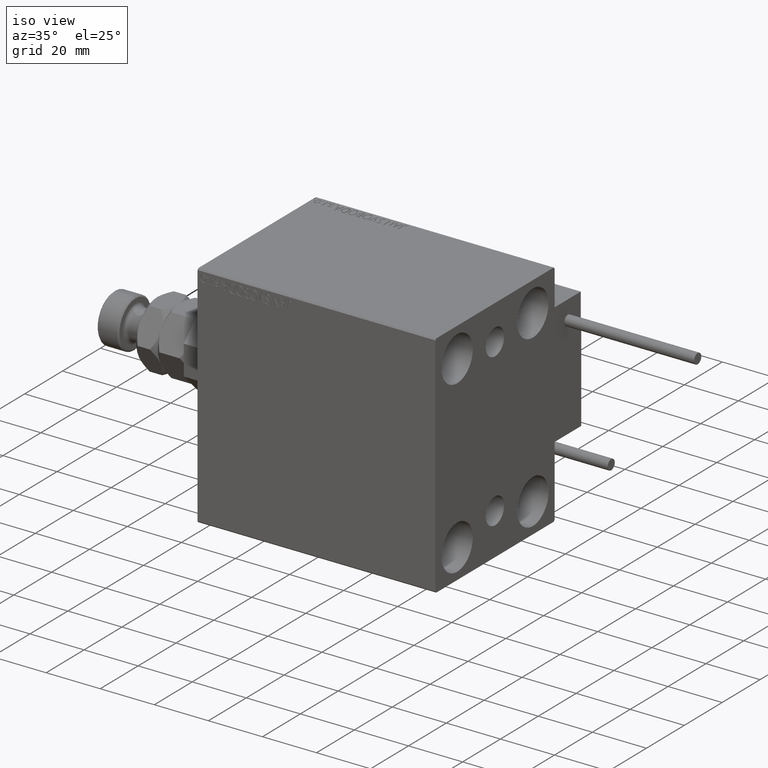
[diagram: clean part render]
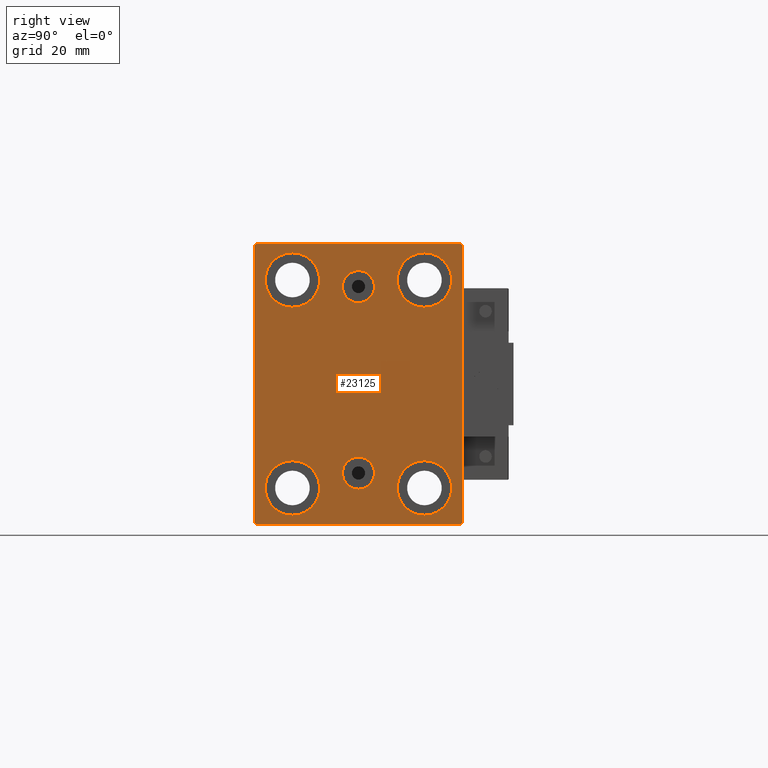
[diagram: tour spotlight — one face highlighted and labeled with its STEP entity id]
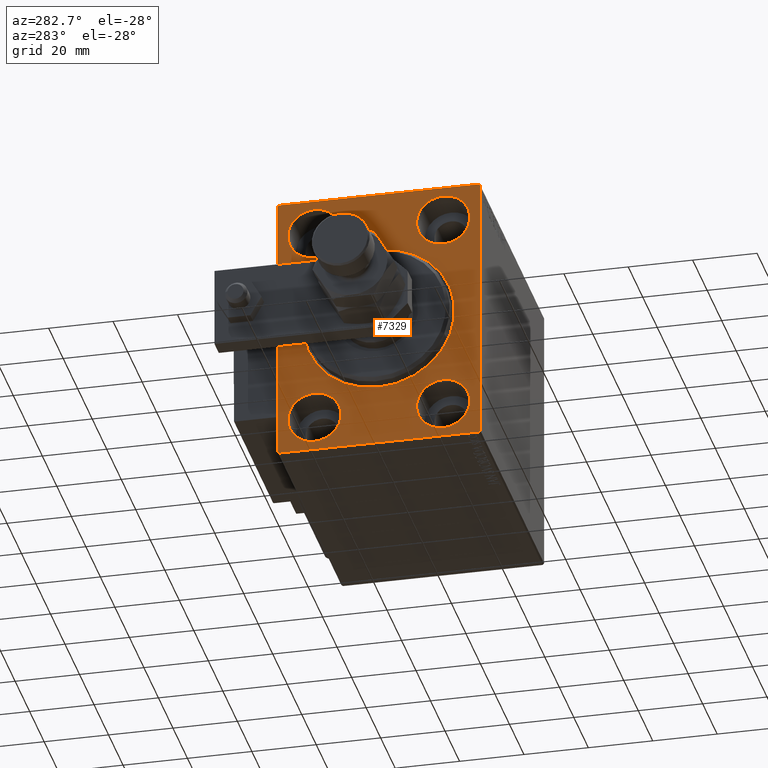
[diagram: tour spotlight — one face highlighted and labeled with its STEP entity id]
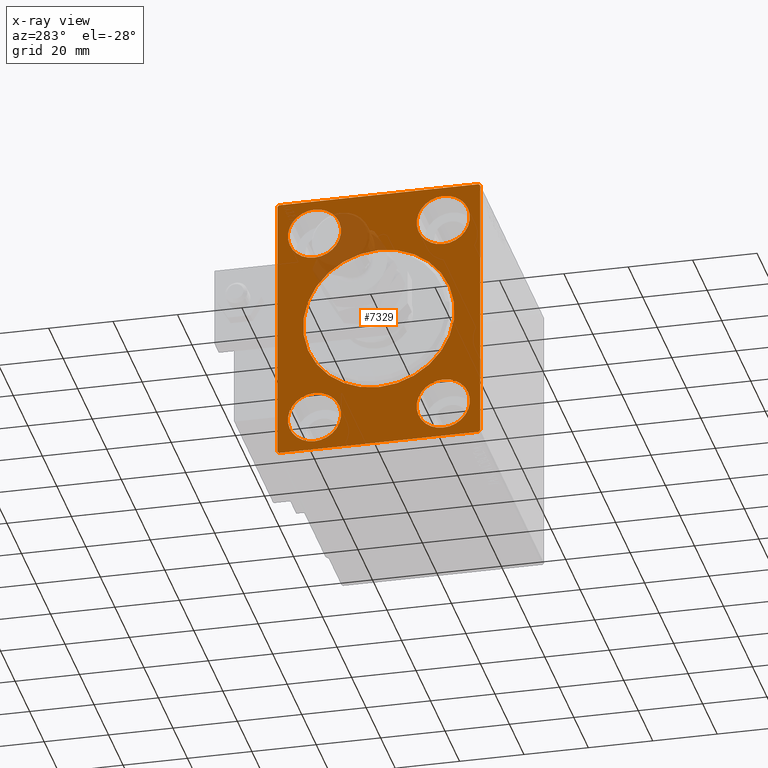
[diagram: x-ray of the same camera — body ghosted, this tour face saturated]
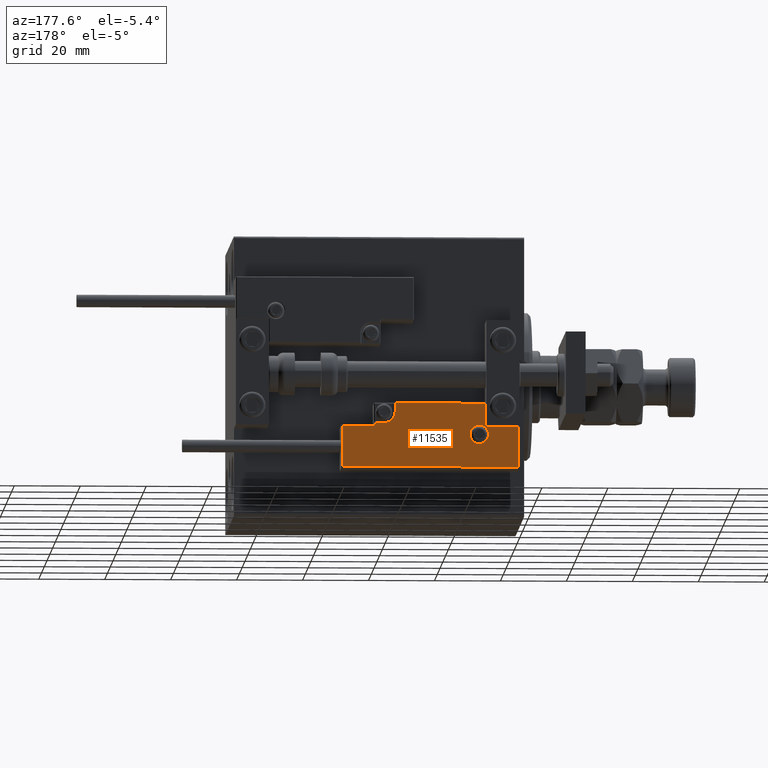
[diagram: tour spotlight — one face highlighted and labeled with its STEP entity id]
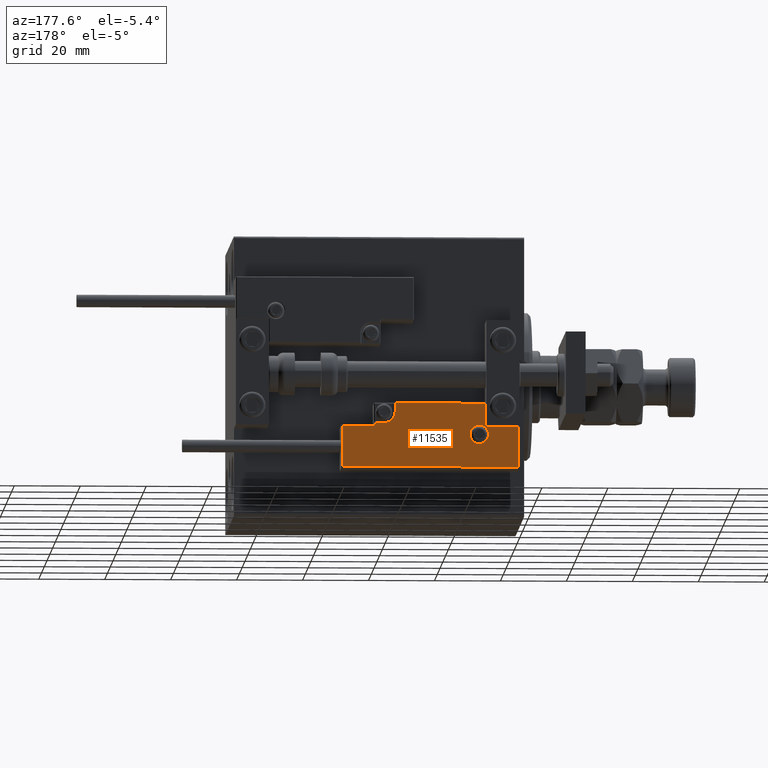
[diagram: tour spotlight — one face highlighted and labeled with its STEP entity id]
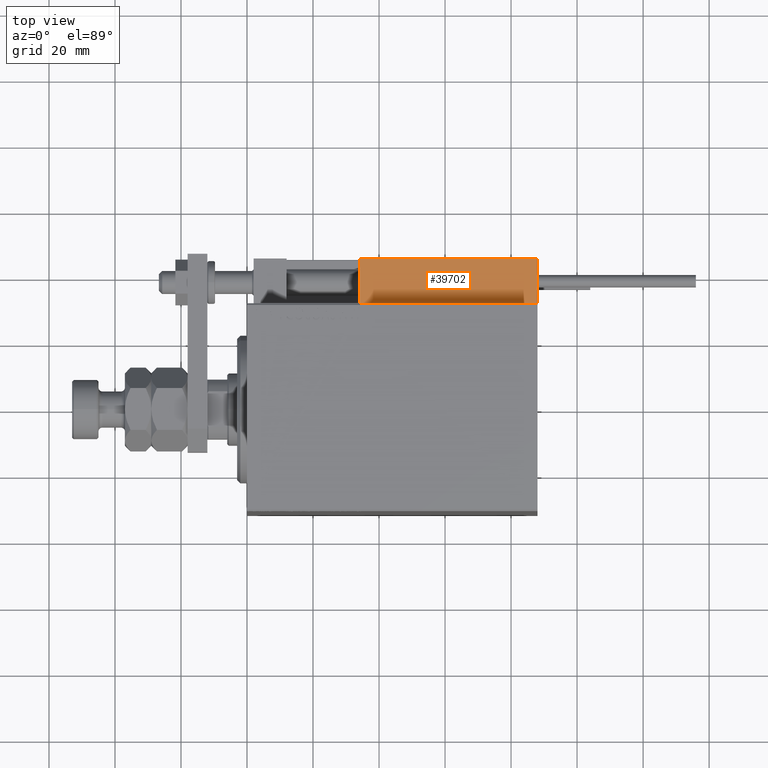
[diagram: tour spotlight — one face highlighted and labeled with its STEP entity id]
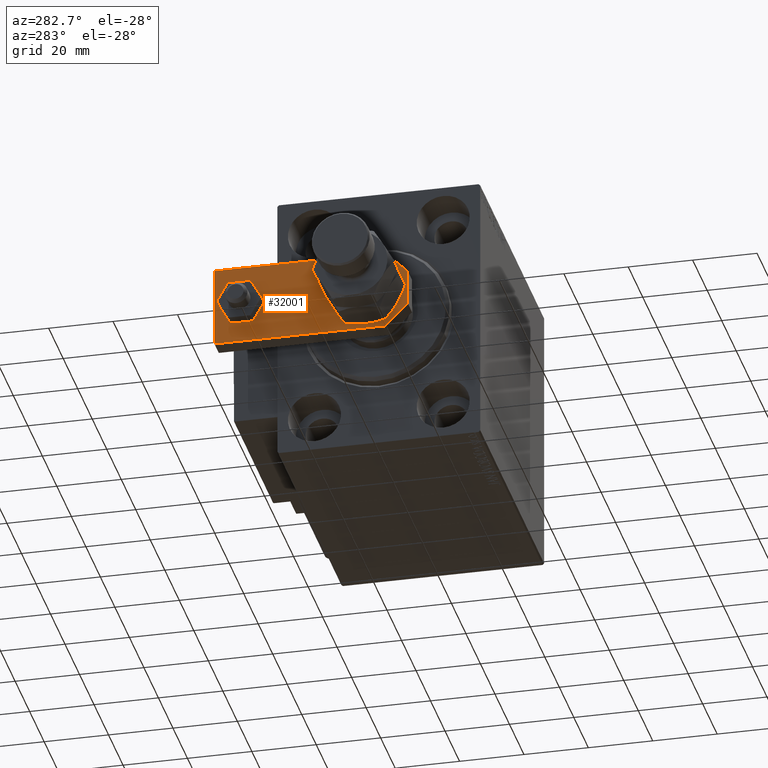
[diagram: tour spotlight — one face highlighted and labeled with its STEP entity id]
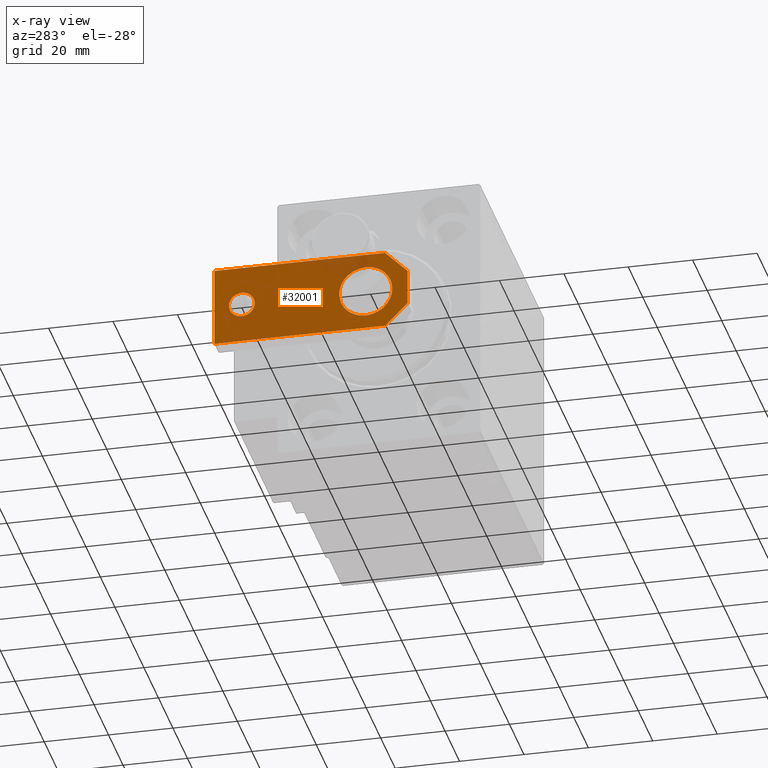
[diagram: x-ray of the same camera — body ghosted, this tour face saturated]
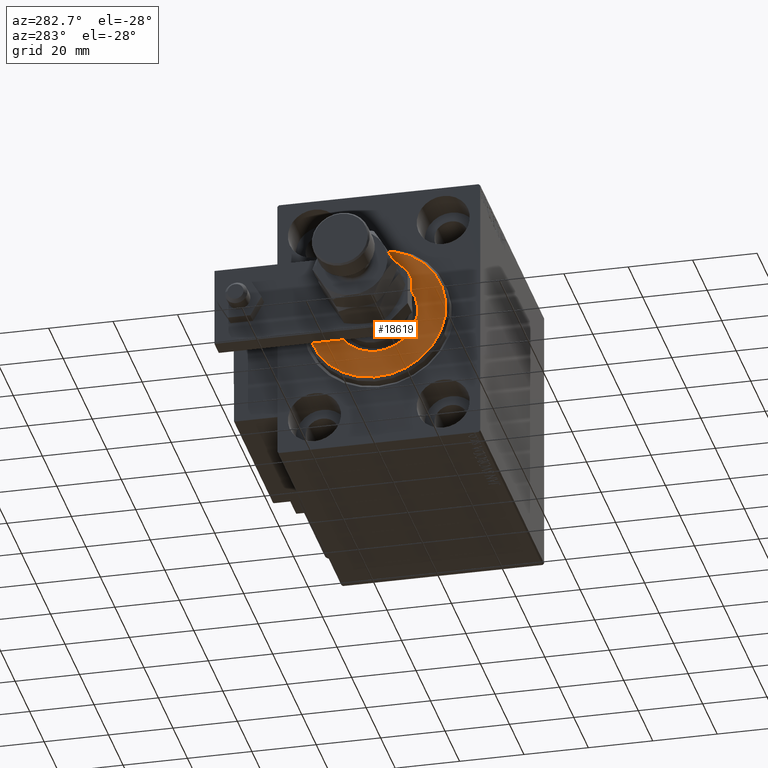
[diagram: tour spotlight — one face highlighted and labeled with its STEP entity id]
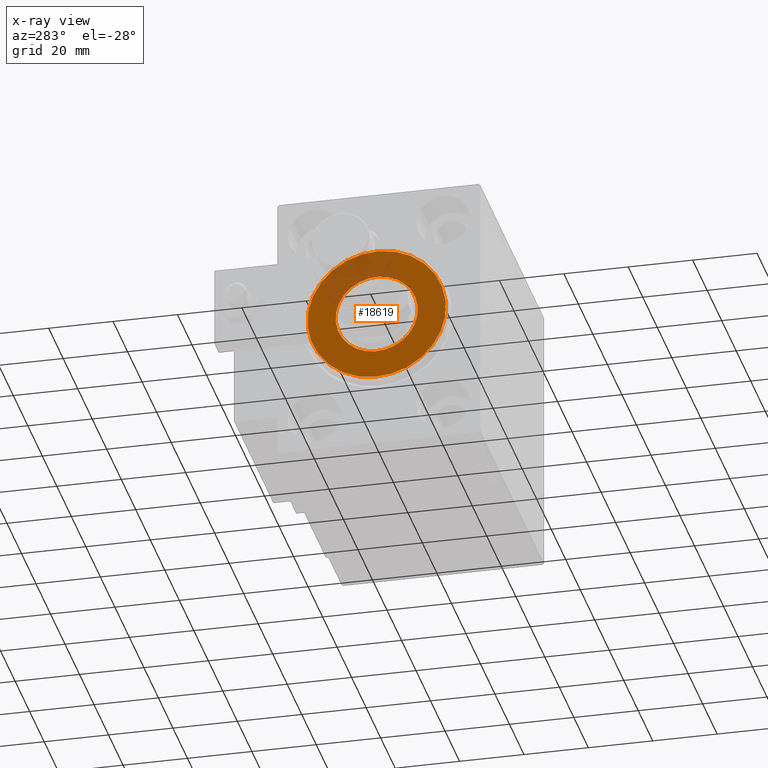
[diagram: x-ray of the same camera — body ghosted, this tour face saturated]
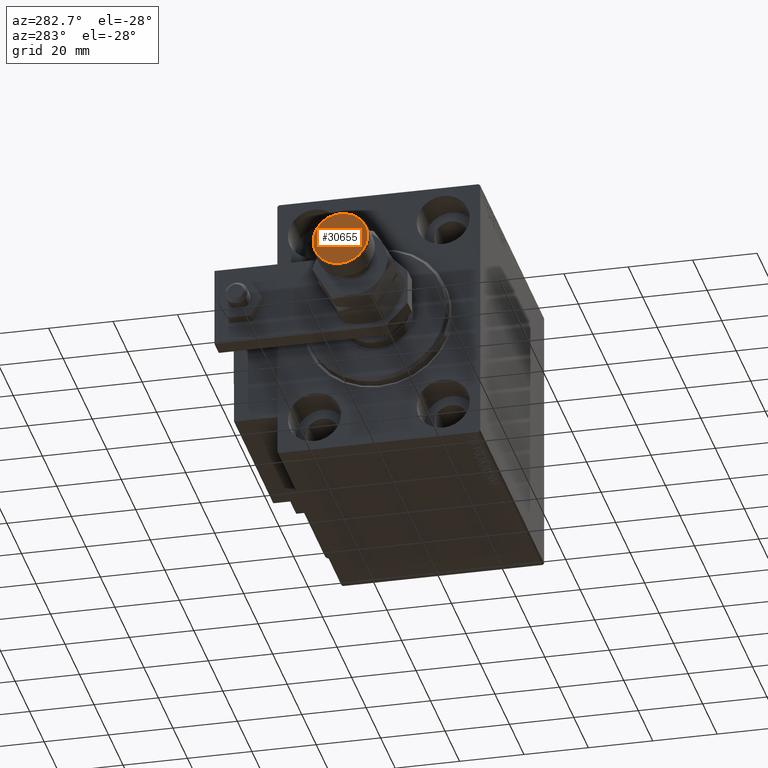
[diagram: tour spotlight — one face highlighted and labeled with its STEP entity id]
A machine part: a face-by-face anatomy tour. The part has 1330 B-rep faces; the first image is the clean iso view, then the 8 largest visible faces are spotlighted one at a time (largest first), each with its STEP entity span.

Face 1 — right view, entity #23125. In plain terms, the highlighted planar face has unit normal (1, 0, 0).
Definition (entity closure, byte-faithful):
#618 = CARTESIAN_POINT ( 'NONE',  ( 88.00000000000000000, 3.901724702083465828E-15, -22.13999999999999346 ) ) ;
#1366 = CARTESIAN_POINT ( 'NONE',  ( 88.00000000000000000, -31.50000000000000000, 42.49999999999999289 ) ) ;
#1401 = VECTOR ( 'NONE', #34150, 1000.000000000000114 ) ;
#1578 = EDGE_LOOP ( 'NONE', ( #5025, #9232 ) ) ;
#1954 = DIRECTION ( 'NONE',  ( 0.000000000000000000, -1.632680918566406300E-16, 1.000000000000000000 ) ) ;
#2008 = DIRECTION ( 'NONE',  ( -1.000000000000000000, -0.000000000000000000, -0.000000000000000000 ) ) ;
#3270 = DIRECTION ( 'NONE',  ( 0.000000000000000000, 0.000000000000000000, 1.000000000000000000 ) ) ;
#4653 = AXIS2_PLACEMENT_3D ( 'NONE', #50674, #14837, #46751 ) ;
#4665 = VERTEX_POINT ( 'NONE', #5868 ) ;
#5025 = ORIENTED_EDGE ( 'NONE', *, *, #6997, .T. ) ;
#5359 = CIRCLE ( 'NONE', #31238, 8.249999999999992895 ) ;
#5766 = CIRCLE ( 'NONE', #35007, 4.859999999999999432 ) ;
#5868 = CARTESIAN_POINT ( 'NONE',  ( 88.00000000000000000, -19.99999999999999645, 39.74999999999999289 ) ) ;
#5889 = LINE ( 'NONE', #18196, #1401 ) ;
#6025 = FACE_BOUND ( 'NONE', #10590, .T. ) ;
#6122 = EDGE_CURVE ( 'NONE', #36307, #49568, #44273, .T. ) ;
#6997 = EDGE_CURVE ( 'NONE', #25562, #4665, #5359, .T. ) ;
#7058 = FACE_BOUND ( 'NONE', #20167, .T. ) ;
#7641 = VERTEX_POINT ( 'NONE', #32906 ) ;
#7703 = EDGE_CURVE ( 'NONE', #10580, #36307, #16949, .T. ) ;
#7743 = VERTEX_POINT ( 'NONE', #10402 ) ;
#8085 = ORIENTED_EDGE ( 'NONE', *, *, #6122, .T. ) ;
#8204 = ORIENTED_EDGE ( 'NONE', *, *, #28390, .T. ) ;
#8773 = CIRCLE ( 'NONE', #32138, 8.250000000000000000 ) ;
#9085 = EDGE_CURVE ( 'NONE', #4665, #25562, #49725, .T. ) ;
#9232 = ORIENTED_EDGE ( 'NONE', *, *, #9085, .T. ) ;
#10060 = ORIENTED_EDGE ( 'NONE', *, *, #24735, .T. ) ;
#10316 = EDGE_CURVE ( 'NONE', #23387, #26576, #41455, .T. ) ;
#10361 = CARTESIAN_POINT ( 'NONE',  ( 88.00000000000000000, -31.50000000000000000, 41.99999999999999289 ) ) ;
#10402 = CARTESIAN_POINT ( 'NONE',  ( 88.00000000000000000, -20.00000000000000355, -39.74999999999999289 ) ) ;
#10463 = ORIENTED_EDGE ( 'NONE', *, *, #43786, .T. ) ;
#10530 = AXIS2_PLACEMENT_3D ( 'NONE', #13638, #41133, #29600 ) ;
#10580 = VERTEX_POINT ( 'NONE', #44458 ) ;
#10590 = EDGE_LOOP ( 'NONE', ( #12080, #10463 ) ) ;
#10998 = DIRECTION ( 'NONE',  ( 1.000000000000000000, 0.000000000000000000, 0.000000000000000000 ) ) ;
#11048 = VECTOR ( 'NONE', #12325, 1000.000000000000000 ) ;
#11370 = CARTESIAN_POINT ( 'NONE',  ( 88.00000000000000000, 31.50000000000000000, 42.50000000000000711 ) ) ;
#12080 = ORIENTED_EDGE ( 'NONE', *, *, #10316, .T. ) ;
#12325 = DIRECTION ( 'NONE',  ( -0.000000000000000000, 0.7071067811865378028, 0.7071067811865573427 ) ) ;
#12401 = EDGE_CURVE ( 'NONE', #49568, #21599, #35971, .T. ) ;
#12454 = DIRECTION ( 'NONE',  ( 0.000000000000000000, 0.000000000000000000, 1.000000000000000000 ) ) ;
#12837 = LINE ( 'NONE', #48137, #11048 ) ;
#13638 = CARTESIAN_POINT ( 'NONE',  ( 88.00000000000000000, 20.00000000000000355, 31.50000000000000000 ) ) ;
#13919 = EDGE_LOOP ( 'NONE', ( #28036, #29770 ) ) ;
#14211 = DIRECTION ( 'NONE',  ( 0.000000000000000000, 0.000000000000000000, 1.000000000000000000 ) ) ;
#14389 = CIRCLE ( 'NONE', #24412, 8.249999999999992895 ) ;
#14837 = DIRECTION ( 'NONE',  ( 1.000000000000000000, 0.000000000000000000, -0.000000000000000000 ) ) ;
#15256 = CARTESIAN_POINT ( 'NONE',  ( 88.00000000000000000, -2.976515330312223011E-15, 34.36000000000000654 ) ) ;
#15491 = CARTESIAN_POINT ( 'NONE',  ( 88.00000000000000000, 31.00000000000002842, -42.50000000000000711 ) ) ;
#15758 = DIRECTION ( 'NONE',  ( 1.000000000000000000, 0.000000000000000000, 0.000000000000000000 ) ) ;
#16002 = CIRCLE ( 'NONE', #49387, 4.859999999999999432 ) ;
#16661 = CARTESIAN_POINT ( 'NONE',  ( 88.00000000000000000, 30.99999999999998579, 42.50000000000000711 ) ) ;
#16834 = VERTEX_POINT ( 'NONE', #45369 ) ;
#16949 = LINE ( 'NONE', #37361, #30457 ) ;
#17792 = VERTEX_POINT ( 'NONE', #15491 ) ;
#17886 = DIRECTION ( 'NONE',  ( -1.000000000000000000, -0.000000000000000000, -0.000000000000000000 ) ) ;
#18015 = DIRECTION ( 'NONE',  ( 0.000000000000000000, 0.000000000000000000, -1.000000000000000000 ) ) ;
#18196 = CARTESIAN_POINT ( 'NONE',  ( 88.00000000000000000, 36.74999999999999289, 36.74999999999999289 ) ) ;
#18372 = ORIENTED_EDGE ( 'NONE', *, *, #30075, .T. ) ;
#18775 = EDGE_CURVE ( 'NONE', #26034, #42971, #5766, .T. ) ;
#18843 = FACE_OUTER_BOUND ( 'NONE', #36670, .T. ) ;
#18927 = CIRCLE ( 'NONE', #28092, 8.250000000000000000 ) ;
#19602 = VERTEX_POINT ( 'NONE', #16661 ) ;
#19679 = CARTESIAN_POINT ( 'NONE',  ( 88.00000000000000000, -31.50000000000000000, -42.50000000000000711 ) ) ;
#19751 = CARTESIAN_POINT ( 'NONE',  ( 88.00000000000000000, -36.74999999999958078, -36.75000000000059686 ) ) ;
#20088 = DIRECTION ( 'NONE',  ( 1.000000000000000000, 0.000000000000000000, -0.000000000000000000 ) ) ;
#20167 = EDGE_LOOP ( 'NONE', ( #30273, #38632 ) ) ;
#20351 = DIRECTION ( 'NONE',  ( 0.000000000000000000, 0.000000000000000000, 1.000000000000000000 ) ) ;
#20483 = EDGE_LOOP ( 'NONE', ( #34138, #10060 ) ) ;
#20484 = DIRECTION ( 'NONE',  ( 0.000000000000000000, 0.000000000000000000, -1.000000000000000000 ) ) ;
#20994 = AXIS2_PLACEMENT_3D ( 'NONE', #44051, #48235, #3270 ) ;
#21147 = DIRECTION ( 'NONE',  ( 0.000000000000000000, -0.7071067811865378028, -0.7071067811865573427 ) ) ;
#21480 = VECTOR ( 'NONE', #27333, 1000.000000000000000 ) ;
#21581 = EDGE_CURVE ( 'NONE', #40412, #16834, #25257, .T. ) ;
#21599 = VERTEX_POINT ( 'NONE', #41738 ) ;
#22206 = EDGE_CURVE ( 'NONE', #7641, #32186, #8773, .T. ) ;
#22299 = EDGE_LOOP ( 'NONE', ( #30461, #51178 ) ) ;
#22550 = DIRECTION ( 'NONE',  ( -1.000000000000000000, -0.000000000000000000, -0.000000000000000000 ) ) ;
#23026 = FACE_BOUND ( 'NONE', #22299, .T. ) ;
#23070 = VECTOR ( 'NONE', #44245, 1000.000000000000000 ) ;
#23125 = ADVANCED_FACE ( 'NONE', ( #7058, #23026, #37962, #38988, #6025, #35052, #18843 ), #46568, .T. ) ;
#23387 = VERTEX_POINT ( 'NONE', #29265 ) ;
#23675 = DIRECTION ( 'NONE',  ( -0.000000000000000000, 0.7071067811865573427, -0.7071067811865378028 ) ) ;
#24412 = AXIS2_PLACEMENT_3D ( 'NONE', #25831, #2008, #29238 ) ;
#24735 = EDGE_CURVE ( 'NONE', #32186, #7641, #36289, .T. ) ;
#25257 = LINE ( 'NONE', #25777, #40214 ) ;
#25562 = VERTEX_POINT ( 'NONE', #40169 ) ;
#25777 = CARTESIAN_POINT ( 'NONE',  ( 88.00000000000000000, 31.50000000000001421, -42.50000000000000711 ) ) ;
#25831 = CARTESIAN_POINT ( 'NONE',  ( 88.00000000000000000, 20.00000000000000355, 31.50000000000000000 ) ) ;
#26034 = VERTEX_POINT ( 'NONE', #35558 ) ;
#26249 = VECTOR ( 'NONE', #20484, 1000.000000000000000 ) ;
#26576 = VERTEX_POINT ( 'NONE', #45527 ) ;
#27177 = AXIS2_PLACEMENT_3D ( 'NONE', #50563, #17886, #14211 ) ;
#27333 = DIRECTION ( 'NONE',  ( 0.000000000000000000, -1.000000000000000000, -2.202823461557850341E-16 ) ) ;
#27815 = EDGE_CURVE ( 'NONE', #47330, #31292, #45625, .T. ) ;
#27957 = ORIENTED_EDGE ( 'NONE', *, *, #7703, .T. ) ;
#28036 = ORIENTED_EDGE ( 'NONE', *, *, #29180, .T. ) ;
#28092 = AXIS2_PLACEMENT_3D ( 'NONE', #50789, #34331, #42441 ) ;
#28390 = EDGE_CURVE ( 'NONE', #21599, #17792, #51582, .T. ) ;
#29180 = EDGE_CURVE ( 'NONE', #7743, #49836, #18927, .T. ) ;
#29238 = DIRECTION ( 'NONE',  ( 0.000000000000000000, 0.000000000000000000, 1.000000000000000000 ) ) ;
#29265 = CARTESIAN_POINT ( 'NONE',  ( 88.00000000000000000, 20.00000000000000355, 23.25000000000000355 ) ) ;
#29515 = CARTESIAN_POINT ( 'NONE',  ( 88.00000000000000000, 3.306546357697852550E-15, -31.85999999999998522 ) ) ;
#29600 = DIRECTION ( 'NONE',  ( 0.000000000000000000, 0.000000000000000000, 1.000000000000000000 ) ) ;
#29770 = ORIENTED_EDGE ( 'NONE', *, *, #40981, .T. ) ;
#29868 = CARTESIAN_POINT ( 'NONE',  ( 88.00000000000000000, 19.99999999999999645, -31.49999999999999289 ) ) ;
#30075 = EDGE_CURVE ( 'NONE', #16834, #19602, #5889, .T. ) ;
#30165 = ORIENTED_EDGE ( 'NONE', *, *, #21581, .T. ) ;
#30259 = AXIS2_PLACEMENT_3D ( 'NONE', #40765, #20088, #20351 ) ;
#30273 = ORIENTED_EDGE ( 'NONE', *, *, #18775, .F. ) ;
#30277 = EDGE_CURVE ( 'NONE', #19602, #10580, #47197, .T. ) ;
#30457 = VECTOR ( 'NONE', #21147, 1000.000000000000000 ) ;
#30461 = ORIENTED_EDGE ( 'NONE', *, *, #43691, .F. ) ;
#30868 = CARTESIAN_POINT ( 'NONE',  ( 88.00000000000000000, 0.000000000000000000, 0.000000000000000000 ) ) ;
#31238 = AXIS2_PLACEMENT_3D ( 'NONE', #47437, #31987, #51353 ) ;
#31292 = VERTEX_POINT ( 'NONE', #29515 ) ;
#31987 = DIRECTION ( 'NONE',  ( -1.000000000000000000, -0.000000000000000000, -0.000000000000000000 ) ) ;
#32138 = AXIS2_PLACEMENT_3D ( 'NONE', #36532, #32329, #12454 ) ;
#32186 = VERTEX_POINT ( 'NONE', #39058 ) ;
#32329 = DIRECTION ( 'NONE',  ( -1.000000000000000000, -0.000000000000000000, -0.000000000000000000 ) ) ;
#32906 = CARTESIAN_POINT ( 'NONE',  ( 88.00000000000000000, 19.99999999999999645, -39.74999999999999289 ) ) ;
#34138 = ORIENTED_EDGE ( 'NONE', *, *, #22206, .T. ) ;
#34150 = DIRECTION ( 'NONE',  ( -0.000000000000000000, -0.7071067811865474617, 0.7071067811865474617 ) ) ;
#34313 = CARTESIAN_POINT ( 'NONE',  ( 88.00000000000000000, -31.50000000000000000, -42.00000000000002132 ) ) ;
#34331 = DIRECTION ( 'NONE',  ( -1.000000000000000000, -0.000000000000000000, -0.000000000000000000 ) ) ;
#35007 = AXIS2_PLACEMENT_3D ( 'NONE', #51065, #15758, #39060 ) ;
#35052 = FACE_BOUND ( 'NONE', #13919, .T. ) ;
#35558 = CARTESIAN_POINT ( 'NONE',  ( 88.00000000000000000, -3.571693674697836683E-15, 24.64000000000001123 ) ) ;
#35612 = ORIENTED_EDGE ( 'NONE', *, *, #12401, .T. ) ;
#35971 = LINE ( 'NONE', #19751, #43999 ) ;
#35980 = CIRCLE ( 'NONE', #20994, 8.250000000000000000 ) ;
#36289 = CIRCLE ( 'NONE', #51322, 8.250000000000000000 ) ;
#36307 = VERTEX_POINT ( 'NONE', #10361 ) ;
#36532 = CARTESIAN_POINT ( 'NONE',  ( 88.00000000000000000, 19.99999999999999645, -31.49999999999999289 ) ) ;
#36670 = EDGE_LOOP ( 'NONE', ( #37152, #27957, #8085, #35612, #8204, #47122, #30165, #18372 ) ) ;
#37152 = ORIENTED_EDGE ( 'NONE', *, *, #30277, .T. ) ;
#37361 = CARTESIAN_POINT ( 'NONE',  ( 88.00000000000000000, -36.75000000000044054, 36.74999999999942446 ) ) ;
#37413 = CARTESIAN_POINT ( 'NONE',  ( 88.00000000000000000, -20.00000000000000355, -23.24999999999999289 ) ) ;
#37962 = FACE_BOUND ( 'NONE', #20483, .T. ) ;
#38231 = DIRECTION ( 'NONE',  ( 0.000000000000000000, 0.000000000000000000, -1.000000000000000000 ) ) ;
#38632 = ORIENTED_EDGE ( 'NONE', *, *, #41935, .F. ) ;
#38988 = FACE_BOUND ( 'NONE', #1578, .T. ) ;
#39058 = CARTESIAN_POINT ( 'NONE',  ( 88.00000000000000000, 19.99999999999999645, -23.24999999999999289 ) ) ;
#39060 = DIRECTION ( 'NONE',  ( 0.000000000000000000, 0.000000000000000000, -1.000000000000000000 ) ) ;
#39828 = CARTESIAN_POINT ( 'NONE',  ( 88.00000000000000000, 31.50000000000001421, -42.00000000000000711 ) ) ;
#40169 = CARTESIAN_POINT ( 'NONE',  ( 88.00000000000000000, -19.99999999999999645, 23.25000000000000355 ) ) ;
#40214 = VECTOR ( 'NONE', #1954, 1000.000000000000000 ) ;
#40412 = VERTEX_POINT ( 'NONE', #39828 ) ;
#40765 = CARTESIAN_POINT ( 'NONE',  ( 88.00000000000000000, 3.306546357697852550E-15, -26.99999999999998934 ) ) ;
#40981 = EDGE_CURVE ( 'NONE', #49836, #7743, #35980, .T. ) ;
#41133 = DIRECTION ( 'NONE',  ( -1.000000000000000000, -0.000000000000000000, -0.000000000000000000 ) ) ;
#41152 = CIRCLE ( 'NONE', #30259, 4.859999999999995879 ) ;
#41455 = CIRCLE ( 'NONE', #10530, 8.249999999999992895 ) ;
#41738 = CARTESIAN_POINT ( 'NONE',  ( 88.00000000000000000, -31.00000000000000000, -42.50000000000000711 ) ) ;
#41826 = DIRECTION ( 'NONE',  ( 1.000000000000000000, 0.000000000000000000, 0.000000000000000000 ) ) ;
#41935 = EDGE_CURVE ( 'NONE', #42971, #26034, #16002, .T. ) ;
#42441 = DIRECTION ( 'NONE',  ( 0.000000000000000000, 0.000000000000000000, 1.000000000000000000 ) ) ;
#42971 = VERTEX_POINT ( 'NONE', #15256 ) ;
#43331 = EDGE_CURVE ( 'NONE', #17792, #40412, #12837, .T. ) ;
#43691 = EDGE_CURVE ( 'NONE', #31292, #47330, #41152, .T. ) ;
#43786 = EDGE_CURVE ( 'NONE', #26576, #23387, #14389, .T. ) ;
#43999 = VECTOR ( 'NONE', #23675, 1000.000000000000000 ) ;
#44051 = CARTESIAN_POINT ( 'NONE',  ( 88.00000000000000000, -20.00000000000000355, -31.49999999999999289 ) ) ;
#44245 = DIRECTION ( 'NONE',  ( 0.000000000000000000, 1.000000000000000000, 0.000000000000000000 ) ) ;
#44273 = LINE ( 'NONE', #1366, #26249 ) ;
#44458 = CARTESIAN_POINT ( 'NONE',  ( 88.00000000000000000, -31.00000000000001421, 42.49999999999999289 ) ) ;
#45369 = CARTESIAN_POINT ( 'NONE',  ( 88.00000000000000000, 31.50000000000000000, 41.99999999999999289 ) ) ;
#45527 = CARTESIAN_POINT ( 'NONE',  ( 88.00000000000000000, 20.00000000000000355, 39.74999999999999289 ) ) ;
#45625 = CIRCLE ( 'NONE', #4653, 4.859999999999995879 ) ;
#46091 = DIRECTION ( 'NONE',  ( 0.000000000000000000, 0.000000000000000000, 1.000000000000000000 ) ) ;
#46568 = PLANE ( 'NONE',  #50548 ) ;
#46751 = DIRECTION ( 'NONE',  ( 0.000000000000000000, 0.000000000000000000, 1.000000000000000000 ) ) ;
#47122 = ORIENTED_EDGE ( 'NONE', *, *, #43331, .T. ) ;
#47197 = LINE ( 'NONE', #11370, #21480 ) ;
#47330 = VERTEX_POINT ( 'NONE', #618 ) ;
#47437 = CARTESIAN_POINT ( 'NONE',  ( 88.00000000000000000, -19.99999999999999645, 31.50000000000000000 ) ) ;
#48137 = CARTESIAN_POINT ( 'NONE',  ( 88.00000000000000000, 36.75000000000045475, -36.74999999999943867 ) ) ;
#48235 = DIRECTION ( 'NONE',  ( -1.000000000000000000, -0.000000000000000000, -0.000000000000000000 ) ) ;
#49387 = AXIS2_PLACEMENT_3D ( 'NONE', #49669, #41826, #18015 ) ;
#49568 = VERTEX_POINT ( 'NONE', #34313 ) ;
#49669 = CARTESIAN_POINT ( 'NONE',  ( 88.00000000000000000, -3.571693674697836683E-15, 29.50000000000001066 ) ) ;
#49725 = CIRCLE ( 'NONE', #27177, 8.249999999999992895 ) ;
#49836 = VERTEX_POINT ( 'NONE', #37413 ) ;
#50548 = AXIS2_PLACEMENT_3D ( 'NONE', #30868, #10998, #38231 ) ;
#50563 = CARTESIAN_POINT ( 'NONE',  ( 88.00000000000000000, -19.99999999999999645, 31.50000000000000000 ) ) ;
#50674 = CARTESIAN_POINT ( 'NONE',  ( 88.00000000000000000, 3.306546357697852550E-15, -26.99999999999998934 ) ) ;
#50789 = CARTESIAN_POINT ( 'NONE',  ( 88.00000000000000000, -20.00000000000000355, -31.49999999999999289 ) ) ;
#51065 = CARTESIAN_POINT ( 'NONE',  ( 88.00000000000000000, -3.571693674697836683E-15, 29.50000000000001066 ) ) ;
#51178 = ORIENTED_EDGE ( 'NONE', *, *, #27815, .F. ) ;
#51322 = AXIS2_PLACEMENT_3D ( 'NONE', #29868, #22550, #46091 ) ;
#51353 = DIRECTION ( 'NONE',  ( 0.000000000000000000, 0.000000000000000000, 1.000000000000000000 ) ) ;
#51582 = LINE ( 'NONE', #19679, #23070 ) ;

Face 2 — auxiliary view, entity #7329. An x-ray twin of the same camera follows (body ghosted, this face saturated) — the face is partly hidden behind the body. In plain terms, the highlighted planar face has unit normal (1, 0, 0).
Definition (entity closure, byte-faithful):
#329 = EDGE_CURVE ( 'NONE', #16965, #29419, #50755, .T. ) ;
#529 = DIRECTION ( 'NONE',  ( 1.000000000000000000, 0.000000000000000000, 0.000000000000000000 ) ) ;
#1311 = CARTESIAN_POINT ( 'NONE',  ( 0.000000000000000000, -19.99999999999999645, 31.50000000000000000 ) ) ;
#1562 = FACE_BOUND ( 'NONE', #17904, .T. ) ;
#2067 = AXIS2_PLACEMENT_3D ( 'NONE', #42640, #2358, #34021 ) ;
#2288 = CARTESIAN_POINT ( 'NONE',  ( 0.000000000000000000, 2.877919977996279137E-15, -23.49999999999998934 ) ) ;
#2358 = DIRECTION ( 'NONE',  ( -1.000000000000000000, 0.000000000000000000, 0.000000000000000000 ) ) ;
#2456 = EDGE_CURVE ( 'NONE', #26729, #28872, #16073, .T. ) ;
#2589 = ORIENTED_EDGE ( 'NONE', *, *, #2646, .T. ) ;
#2646 = EDGE_CURVE ( 'NONE', #28872, #26729, #31090, .T. ) ;
#2649 = CARTESIAN_POINT ( 'NONE',  ( 0.000000000000000000, -20.00000000000000355, -31.49999999999999289 ) ) ;
#2690 = EDGE_LOOP ( 'NONE', ( #38380, #10420 ) ) ;
#2906 = LINE ( 'NONE', #22790, #36756 ) ;
#3313 = LINE ( 'NONE', #48016, #35660 ) ;
#3688 = AXIS2_PLACEMENT_3D ( 'NONE', #16291, #51349, #15255 ) ;
#3712 = AXIS2_PLACEMENT_3D ( 'NONE', #1311, #40839, #48666 ) ;
#3957 = CARTESIAN_POINT ( 'NONE',  ( 0.000000000000000000, 20.00000000000000355, 23.25000000000000355 ) ) ;
#4500 = VECTOR ( 'NONE', #17593, 1000.000000000000000 ) ;
#5497 = FACE_BOUND ( 'NONE', #47386, .T. ) ;
#5694 = ORIENTED_EDGE ( 'NONE', *, *, #37500, .F. ) ;
#6538 = DIRECTION ( 'NONE',  ( 0.000000000000000000, 0.000000000000000000, 1.000000000000000000 ) ) ;
#7064 = EDGE_CURVE ( 'NONE', #49194, #35292, #24677, .T. ) ;
#7118 = AXIS2_PLACEMENT_3D ( 'NONE', #42378, #50216, #6538 ) ;
#7329 = ADVANCED_FACE ( 'NONE', ( #1562, #21218, #17534, #5497, #45256, #40316 ), #44744, .F. ) ;
#7332 = EDGE_CURVE ( 'NONE', #10411, #13540, #32129, .T. ) ;
#7439 = VERTEX_POINT ( 'NONE', #37942 ) ;
#7483 = ORIENTED_EDGE ( 'NONE', *, *, #7064, .F. ) ;
#8194 = EDGE_LOOP ( 'NONE', ( #29793, #25312 ) ) ;
#8330 = EDGE_CURVE ( 'NONE', #7439, #35292, #15011, .T. ) ;
#8417 = EDGE_CURVE ( 'NONE', #29419, #16965, #48026, .T. ) ;
#8751 = CARTESIAN_POINT ( 'NONE',  ( 0.000000000000000000, 0.000000000000000000, 23.49999999999998934 ) ) ;
#9677 = VERTEX_POINT ( 'NONE', #44911 ) ;
#9794 = CARTESIAN_POINT ( 'NONE',  ( 0.000000000000000000, -31.50000000000000000, 41.99999999999999289 ) ) ;
#10374 = EDGE_CURVE ( 'NONE', #23771, #35685, #31397, .T. ) ;
#10411 = VERTEX_POINT ( 'NONE', #26719 ) ;
#10420 = ORIENTED_EDGE ( 'NONE', *, *, #49967, .F. ) ;
#11107 = DIRECTION ( 'NONE',  ( -0.000000000000000000, -0.7071067811865573427, 0.7071067811865378028 ) ) ;
#11419 = VECTOR ( 'NONE', #40187, 1000.000000000000000 ) ;
#11442 = LINE ( 'NONE', #15086, #46985 ) ;
#12795 = LINE ( 'NONE', #17235, #30678 ) ;
#13084 = CARTESIAN_POINT ( 'NONE',  ( 0.000000000000000000, 19.99999999999999645, -31.49999999999999289 ) ) ;
#13438 = CARTESIAN_POINT ( 'NONE',  ( 0.000000000000000000, 30.99999999999998579, 42.50000000000000711 ) ) ;
#13540 = VERTEX_POINT ( 'NONE', #43252 ) ;
#14660 = CIRCLE ( 'NONE', #3688, 8.249999999999992895 ) ;
#14669 = EDGE_LOOP ( 'NONE', ( #21796, #28272 ) ) ;
#14835 = AXIS2_PLACEMENT_3D ( 'NONE', #18936, #39335, #35138 ) ;
#15011 = LINE ( 'NONE', #46927, #32170 ) ;
#15086 = CARTESIAN_POINT ( 'NONE',  ( 0.000000000000000000, 31.50000000000001421, -42.50000000000000711 ) ) ;
#15118 = CARTESIAN_POINT ( 'NONE',  ( 0.000000000000000000, -20.00000000000000355, -31.49999999999999289 ) ) ;
#15255 = DIRECTION ( 'NONE',  ( 0.000000000000000000, 0.000000000000000000, 1.000000000000000000 ) ) ;
#15859 = DIRECTION ( 'NONE',  ( 0.000000000000000000, -0.7071067811865378028, -0.7071067811865573427 ) ) ;
#16073 = CIRCLE ( 'NONE', #45323, 23.49999999999998934 ) ;
#16291 = CARTESIAN_POINT ( 'NONE',  ( 0.000000000000000000, -19.99999999999999645, 31.50000000000000000 ) ) ;
#16377 = LINE ( 'NONE', #28678, #11419 ) ;
#16937 = ORIENTED_EDGE ( 'NONE', *, *, #329, .F. ) ;
#16965 = VERTEX_POINT ( 'NONE', #18681 ) ;
#17136 = VERTEX_POINT ( 'NONE', #45310 ) ;
#17235 = CARTESIAN_POINT ( 'NONE',  ( 0.000000000000000000, -31.50000000000000000, 41.99999999999999289 ) ) ;
#17519 = DIRECTION ( 'NONE',  ( 0.000000000000000000, 0.000000000000000000, 1.000000000000000000 ) ) ;
#17534 = FACE_BOUND ( 'NONE', #8194, .T. ) ;
#17593 = DIRECTION ( 'NONE',  ( 0.000000000000000000, 0.000000000000000000, -1.000000000000000000 ) ) ;
#17904 = EDGE_LOOP ( 'NONE', ( #2589, #20420 ) ) ;
#18681 = CARTESIAN_POINT ( 'NONE',  ( 0.000000000000000000, 20.00000000000000355, 39.74999999999999289 ) ) ;
#18936 = CARTESIAN_POINT ( 'NONE',  ( 0.000000000000000000, 20.00000000000000355, 31.50000000000000000 ) ) ;
#19543 = DIRECTION ( 'NONE',  ( 0.000000000000000000, -1.632680918566406300E-16, 1.000000000000000000 ) ) ;
#20420 = ORIENTED_EDGE ( 'NONE', *, *, #2456, .T. ) ;
#20813 = EDGE_LOOP ( 'NONE', ( #7483, #42751, #5694, #47275, #47294, #32393, #23261, #23646 ) ) ;
#20945 = CARTESIAN_POINT ( 'NONE',  ( 0.000000000000000000, 31.00000000000002842, -42.50000000000000711 ) ) ;
#21218 = FACE_BOUND ( 'NONE', #14669, .T. ) ;
#21394 = AXIS2_PLACEMENT_3D ( 'NONE', #2649, #38497, #22020 ) ;
#21796 = ORIENTED_EDGE ( 'NONE', *, *, #25913, .F. ) ;
#22020 = DIRECTION ( 'NONE',  ( 0.000000000000000000, 0.000000000000000000, 1.000000000000000000 ) ) ;
#22205 = DIRECTION ( 'NONE',  ( 1.000000000000000000, 0.000000000000000000, 0.000000000000000000 ) ) ;
#22524 = AXIS2_PLACEMENT_3D ( 'NONE', #13084, #41078, #17519 ) ;
#22790 = CARTESIAN_POINT ( 'NONE',  ( 0.000000000000000000, 31.50000000000000000, 42.50000000000000711 ) ) ;
#22952 = AXIS2_PLACEMENT_3D ( 'NONE', #33235, #529, #48407 ) ;
#22962 = DIRECTION ( 'NONE',  ( 0.000000000000000000, 0.000000000000000000, -1.000000000000000000 ) ) ;
#23261 = ORIENTED_EDGE ( 'NONE', *, *, #30713, .F. ) ;
#23646 = ORIENTED_EDGE ( 'NONE', *, *, #8330, .T. ) ;
#23771 = VERTEX_POINT ( 'NONE', #39014 ) ;
#24155 = CIRCLE ( 'NONE', #44385, 8.250000000000000000 ) ;
#24419 = EDGE_CURVE ( 'NONE', #13540, #10411, #14660, .T. ) ;
#24677 = LINE ( 'NONE', #37234, #4500 ) ;
#24684 = VERTEX_POINT ( 'NONE', #34064 ) ;
#25312 = ORIENTED_EDGE ( 'NONE', *, *, #7332, .F. ) ;
#25913 = EDGE_CURVE ( 'NONE', #24684, #38634, #37201, .T. ) ;
#26719 = CARTESIAN_POINT ( 'NONE',  ( 0.000000000000000000, -19.99999999999999645, 23.25000000000000355 ) ) ;
#26729 = VERTEX_POINT ( 'NONE', #2288 ) ;
#26918 = CARTESIAN_POINT ( 'NONE',  ( 0.000000000000000000, 19.99999999999999645, -39.74999999999999289 ) ) ;
#28272 = ORIENTED_EDGE ( 'NONE', *, *, #49887, .F. ) ;
#28678 = CARTESIAN_POINT ( 'NONE',  ( 0.000000000000000000, -31.50000000000000000, -42.50000000000000711 ) ) ;
#28872 = VERTEX_POINT ( 'NONE', #8751 ) ;
#28909 = CARTESIAN_POINT ( 'NONE',  ( 0.000000000000000000, -31.00000000000001421, 42.49999999999999289 ) ) ;
#29020 = DIRECTION ( 'NONE',  ( -0.000000000000000000, 0.7071067811865378028, 0.7071067811865573427 ) ) ;
#29401 = DIRECTION ( 'NONE',  ( -0.000000000000000000, 0.7071067811865474617, -0.7071067811865474617 ) ) ;
#29419 = VERTEX_POINT ( 'NONE', #3957 ) ;
#29793 = ORIENTED_EDGE ( 'NONE', *, *, #24419, .F. ) ;
#29938 = EDGE_CURVE ( 'NONE', #17136, #42326, #3313, .T. ) ;
#30377 = DIRECTION ( 'NONE',  ( 0.000000000000000000, -1.000000000000000000, -2.202823461557850341E-16 ) ) ;
#30474 = CARTESIAN_POINT ( 'NONE',  ( 0.000000000000000000, -31.50000000000000000, -42.00000000000002132 ) ) ;
#30678 = VECTOR ( 'NONE', #29020, 1000.000000000000000 ) ;
#30713 = EDGE_CURVE ( 'NONE', #7439, #42326, #16377, .T. ) ;
#31090 = CIRCLE ( 'NONE', #49468, 23.49999999999998934 ) ;
#31231 = EDGE_CURVE ( 'NONE', #49194, #48415, #12795, .T. ) ;
#31397 = CIRCLE ( 'NONE', #21394, 8.250000000000000000 ) ;
#32129 = CIRCLE ( 'NONE', #3712, 8.249999999999992895 ) ;
#32170 = VECTOR ( 'NONE', #11107, 1000.000000000000000 ) ;
#32393 = ORIENTED_EDGE ( 'NONE', *, *, #29938, .T. ) ;
#33235 = CARTESIAN_POINT ( 'NONE',  ( 0.000000000000000000, 0.000000000000000000, 0.000000000000000000 ) ) ;
#33332 = LINE ( 'NONE', #13438, #47729 ) ;
#33968 = CARTESIAN_POINT ( 'NONE',  ( 0.000000000000000000, 0.000000000000000000, 0.000000000000000000 ) ) ;
#34021 = DIRECTION ( 'NONE',  ( 0.000000000000000000, 0.000000000000000000, 1.000000000000000000 ) ) ;
#34064 = CARTESIAN_POINT ( 'NONE',  ( 0.000000000000000000, 19.99999999999999645, -23.24999999999999289 ) ) ;
#34289 = VERTEX_POINT ( 'NONE', #36202 ) ;
#35138 = DIRECTION ( 'NONE',  ( 0.000000000000000000, 0.000000000000000000, 1.000000000000000000 ) ) ;
#35292 = VERTEX_POINT ( 'NONE', #30474 ) ;
#35660 = VECTOR ( 'NONE', #15859, 1000.000000000000000 ) ;
#35685 = VERTEX_POINT ( 'NONE', #50998 ) ;
#36202 = CARTESIAN_POINT ( 'NONE',  ( 0.000000000000000000, 30.99999999999998579, 42.50000000000000711 ) ) ;
#36756 = VECTOR ( 'NONE', #30377, 1000.000000000000000 ) ;
#37201 = CIRCLE ( 'NONE', #7118, 8.250000000000000000 ) ;
#37234 = CARTESIAN_POINT ( 'NONE',  ( 0.000000000000000000, -31.50000000000000000, 42.49999999999999289 ) ) ;
#37500 = EDGE_CURVE ( 'NONE', #34289, #48415, #2906, .T. ) ;
#37942 = CARTESIAN_POINT ( 'NONE',  ( 0.000000000000000000, -31.00000000000000000, -42.50000000000000711 ) ) ;
#38380 = ORIENTED_EDGE ( 'NONE', *, *, #10374, .F. ) ;
#38497 = DIRECTION ( 'NONE',  ( -1.000000000000000000, 0.000000000000000000, 0.000000000000000000 ) ) ;
#38634 = VERTEX_POINT ( 'NONE', #26918 ) ;
#38928 = CARTESIAN_POINT ( 'NONE',  ( 0.000000000000000000, 0.000000000000000000, 0.000000000000000000 ) ) ;
#39014 = CARTESIAN_POINT ( 'NONE',  ( 0.000000000000000000, -20.00000000000000355, -23.24999999999999289 ) ) ;
#39335 = DIRECTION ( 'NONE',  ( -1.000000000000000000, 0.000000000000000000, 0.000000000000000000 ) ) ;
#40187 = DIRECTION ( 'NONE',  ( 0.000000000000000000, 1.000000000000000000, 0.000000000000000000 ) ) ;
#40316 = FACE_OUTER_BOUND ( 'NONE', #20813, .T. ) ;
#40839 = DIRECTION ( 'NONE',  ( -1.000000000000000000, 0.000000000000000000, 0.000000000000000000 ) ) ;
#41078 = DIRECTION ( 'NONE',  ( -1.000000000000000000, 0.000000000000000000, 0.000000000000000000 ) ) ;
#41210 = EDGE_CURVE ( 'NONE', #34289, #9677, #33332, .T. ) ;
#42326 = VERTEX_POINT ( 'NONE', #20945 ) ;
#42378 = CARTESIAN_POINT ( 'NONE',  ( 0.000000000000000000, 19.99999999999999645, -31.49999999999999289 ) ) ;
#42640 = CARTESIAN_POINT ( 'NONE',  ( 0.000000000000000000, 20.00000000000000355, 31.50000000000000000 ) ) ;
#42751 = ORIENTED_EDGE ( 'NONE', *, *, #31231, .T. ) ;
#43097 = DIRECTION ( 'NONE',  ( 0.000000000000000000, 0.000000000000000000, -1.000000000000000000 ) ) ;
#43252 = CARTESIAN_POINT ( 'NONE',  ( 0.000000000000000000, -19.99999999999999645, 39.74999999999999289 ) ) ;
#43382 = CIRCLE ( 'NONE', #22524, 8.250000000000000000 ) ;
#44109 = DIRECTION ( 'NONE',  ( 1.000000000000000000, 0.000000000000000000, 0.000000000000000000 ) ) ;
#44385 = AXIS2_PLACEMENT_3D ( 'NONE', #15118, #51478, #47799 ) ;
#44744 = PLANE ( 'NONE',  #22952 ) ;
#44911 = CARTESIAN_POINT ( 'NONE',  ( 0.000000000000000000, 31.50000000000000000, 41.99999999999999289 ) ) ;
#45002 = EDGE_CURVE ( 'NONE', #17136, #9677, #11442, .T. ) ;
#45256 = FACE_BOUND ( 'NONE', #2690, .T. ) ;
#45310 = CARTESIAN_POINT ( 'NONE',  ( 0.000000000000000000, 31.50000000000001421, -42.00000000000000711 ) ) ;
#45323 = AXIS2_PLACEMENT_3D ( 'NONE', #33968, #22205, #22962 ) ;
#46927 = CARTESIAN_POINT ( 'NONE',  ( 0.000000000000000000, -31.00000000000000000, -42.50000000000000711 ) ) ;
#46985 = VECTOR ( 'NONE', #19543, 1000.000000000000000 ) ;
#47275 = ORIENTED_EDGE ( 'NONE', *, *, #41210, .T. ) ;
#47294 = ORIENTED_EDGE ( 'NONE', *, *, #45002, .F. ) ;
#47386 = EDGE_LOOP ( 'NONE', ( #16937, #49619 ) ) ;
#47729 = VECTOR ( 'NONE', #29401, 1000.000000000000114 ) ;
#47799 = DIRECTION ( 'NONE',  ( 0.000000000000000000, 0.000000000000000000, 1.000000000000000000 ) ) ;
#48016 = CARTESIAN_POINT ( 'NONE',  ( 0.000000000000000000, 31.50000000000001421, -42.00000000000000711 ) ) ;
#48026 = CIRCLE ( 'NONE', #2067, 8.249999999999992895 ) ;
#48407 = DIRECTION ( 'NONE',  ( 0.000000000000000000, 0.000000000000000000, -1.000000000000000000 ) ) ;
#48415 = VERTEX_POINT ( 'NONE', #28909 ) ;
#48666 = DIRECTION ( 'NONE',  ( 0.000000000000000000, 0.000000000000000000, 1.000000000000000000 ) ) ;
#49194 = VERTEX_POINT ( 'NONE', #9794 ) ;
#49468 = AXIS2_PLACEMENT_3D ( 'NONE', #38928, #44109, #43097 ) ;
#49619 = ORIENTED_EDGE ( 'NONE', *, *, #8417, .F. ) ;
#49887 = EDGE_CURVE ( 'NONE', #38634, #24684, #43382, .T. ) ;
#49967 = EDGE_CURVE ( 'NONE', #35685, #23771, #24155, .T. ) ;
#50216 = DIRECTION ( 'NONE',  ( -1.000000000000000000, 0.000000000000000000, 0.000000000000000000 ) ) ;
#50755 = CIRCLE ( 'NONE', #14835, 8.249999999999992895 ) ;
#50998 = CARTESIAN_POINT ( 'NONE',  ( 0.000000000000000000, -20.00000000000000355, -39.74999999999999289 ) ) ;
#51349 = DIRECTION ( 'NONE',  ( -1.000000000000000000, 0.000000000000000000, 0.000000000000000000 ) ) ;
#51478 = DIRECTION ( 'NONE',  ( -1.000000000000000000, 0.000000000000000000, 0.000000000000000000 ) ) ;

Face 3 — auxiliary view, entity #11535. In plain terms, the highlighted planar face has unit normal (0, 1, -0).
Definition (entity closure, byte-faithful):
#10 = VERTEX_POINT ( 'NONE', #49642 ) ;
#671 = CARTESIAN_POINT ( 'NONE',  ( -14.79999999999994920, 9.800000000000004263, 14.00000000000000000 ) ) ;
#924 = EDGE_LOOP ( 'NONE', ( #5043, #15724, #12331, #32997, #27212, #16325, #3942, #20641, #29474, #23248, #13617 ) ) ;
#2097 = CARTESIAN_POINT ( 'NONE',  ( 10.69999999999999929, 3.000000000000003109, 14.00000000000000000 ) ) ;
#2550 = DIRECTION ( 'NONE',  ( -1.000000000000000000, 6.424901762877063495E-17, -0.000000000000000000 ) ) ;
#3128 = ORIENTED_EDGE ( 'NONE', *, *, #30057, .T. ) ;
#3747 = VECTOR ( 'NONE', #2550, 1000.000000000000000 ) ;
#3942 = ORIENTED_EDGE ( 'NONE', *, *, #40630, .T. ) ;
#5043 = ORIENTED_EDGE ( 'NONE', *, *, #8413, .T. ) ;
#5337 = CARTESIAN_POINT ( 'NONE',  ( 16.69999999999999929, 7.300000000000009592, 14.00000000000000000 ) ) ;
#6412 = AXIS2_PLACEMENT_3D ( 'NONE', #9829, #22629, #34918 ) ;
#7292 = CARTESIAN_POINT ( 'NONE',  ( -26.69999999999994600, 7.000000000000005329, 14.00000000000000000 ) ) ;
#8413 = EDGE_CURVE ( 'NONE', #27426, #42509, #46308, .T. ) ;
#8422 = CARTESIAN_POINT ( 'NONE',  ( 10.69999999999999929, 3.000000000000003109, 14.00000000000000000 ) ) ;
#8858 = EDGE_CURVE ( 'NONE', #32767, #41806, #25848, .T. ) ;
#9005 = DIRECTION ( 'NONE',  ( 1.000000000000000000, 5.782411586589357639E-16, -0.000000000000000000 ) ) ;
#9038 = DIRECTION ( 'NONE',  ( 1.000000000000000000, -1.734723475976815230E-16, 0.000000000000000000 ) ) ;
#9829 = CARTESIAN_POINT ( 'NONE',  ( -14.79999999999994920, 9.800000000000004263, 14.00000000000000000 ) ) ;
#11264 = DIRECTION ( 'NONE',  ( 1.000000000000000000, -1.734723475976796001E-16, 0.000000000000000000 ) ) ;
#11414 = VECTOR ( 'NONE', #12223, 1000.000000000000000 ) ;
#11535 = ADVANCED_FACE ( 'NONE', ( #34252, #18033 ), #50457, .T. ) ;
#12167 = EDGE_CURVE ( 'NONE', #18901, #41042, #32356, .T. ) ;
#12223 = DIRECTION ( 'NONE',  ( 9.912705577010318647E-16, 1.000000000000000000, 0.000000000000000000 ) ) ;
#12331 = ORIENTED_EDGE ( 'NONE', *, *, #32216, .T. ) ;
#12763 = EDGE_CURVE ( 'NONE', #35699, #10, #19767, .T. ) ;
#13617 = ORIENTED_EDGE ( 'NONE', *, *, #38296, .T. ) ;
#14426 = AXIS2_PLACEMENT_3D ( 'NONE', #671, #16642, #27898 ) ;
#15075 = CARTESIAN_POINT ( 'NONE',  ( -11.99999999999994849, 9.800000000000004263, 14.00000000000000000 ) ) ;
#15129 = LINE ( 'NONE', #7292, #20427 ) ;
#15376 = CARTESIAN_POINT ( 'NONE',  ( 26.70000000000006324, 20.00000000000001776, 14.00000000000000000 ) ) ;
#15551 = AXIS2_PLACEMENT_3D ( 'NONE', #21714, #38693, #41842 ) ;
#15724 = ORIENTED_EDGE ( 'NONE', *, *, #35250, .T. ) ;
#16280 = CARTESIAN_POINT ( 'NONE',  ( 13.99999999999999822, 3.000000000000002665, 14.00000000000000000 ) ) ;
#16325 = ORIENTED_EDGE ( 'NONE', *, *, #12167, .T. ) ;
#16612 = CARTESIAN_POINT ( 'NONE',  ( -16.99999999999999289, 7.300000000000003375, 14.00000000000000000 ) ) ;
#16642 = DIRECTION ( 'NONE',  ( 0.000000000000000000, -0.000000000000000000, -1.000000000000000000 ) ) ;
#18033 = FACE_OUTER_BOUND ( 'NONE', #924, .T. ) ;
#18105 = CIRCLE ( 'NONE', #6412, 2.800000000000000266 ) ;
#18890 = ORIENTED_EDGE ( 'NONE', *, *, #45103, .T. ) ;
#18901 = VERTEX_POINT ( 'NONE', #28303 ) ;
#19767 = CIRCLE ( 'NONE', #24832, 3.299999999999997158 ) ;
#20427 = VECTOR ( 'NONE', #51228, 1000.000000000000000 ) ;
#20641 = ORIENTED_EDGE ( 'NONE', *, *, #36981, .T. ) ;
#20726 = DIRECTION ( 'NONE',  ( -0.000000000000000000, 1.000000000000000000, -0.000000000000000000 ) ) ;
#21325 = VECTOR ( 'NONE', #34525, 1000.000000000000000 ) ;
#21714 = CARTESIAN_POINT ( 'NONE',  ( 0.000000000000000000, 0.000000000000000000, 14.00000000000000000 ) ) ;
#22189 = CARTESIAN_POINT ( 'NONE',  ( -26.99999999999993605, 19.70000000000002061, 14.00000000000000000 ) ) ;
#22449 = VECTOR ( 'NONE', #29953, 1000.000000000000000 ) ;
#22629 = DIRECTION ( 'NONE',  ( 0.000000000000000000, -0.000000000000000000, -1.000000000000000000 ) ) ;
#23248 = ORIENTED_EDGE ( 'NONE', *, *, #25097, .T. ) ;
#24637 = CARTESIAN_POINT ( 'NONE',  ( -26.69999999999994600, 7.300000000000005151, 14.00000000000000000 ) ) ;
#24832 = AXIS2_PLACEMENT_3D ( 'NONE', #16280, #32234, #48711 ) ;
#25097 = EDGE_CURVE ( 'NONE', #41806, #28412, #15129, .T. ) ;
#25103 = CARTESIAN_POINT ( 'NONE',  ( -17.59999999999994813, 9.800000000000004263, 14.00000000000000000 ) ) ;
#25157 = LINE ( 'NONE', #8422, #47440 ) ;
#25767 = LINE ( 'NONE', #16612, #37604 ) ;
#25848 = LINE ( 'NONE', #22189, #3747 ) ;
#26798 = VERTEX_POINT ( 'NONE', #15075 ) ;
#27212 = ORIENTED_EDGE ( 'NONE', *, *, #30452, .T. ) ;
#27426 = VERTEX_POINT ( 'NONE', #44956 ) ;
#27477 = CARTESIAN_POINT ( 'NONE',  ( 27.00000000000006395, 7.300000000000007816, 14.00000000000000000 ) ) ;
#27898 = DIRECTION ( 'NONE',  ( 1.000000000000000000, 0.000000000000000000, 0.000000000000000000 ) ) ;
#27918 = LINE ( 'NONE', #15376, #45890 ) ;
#28104 = CARTESIAN_POINT ( 'NONE',  ( 26.70000000000006324, 19.70000000000001705, 14.00000000000000000 ) ) ;
#28303 = CARTESIAN_POINT ( 'NONE',  ( 16.69999999999999929, 6.300000000000003375, 14.00000000000000000 ) ) ;
#28351 = CARTESIAN_POINT ( 'NONE',  ( 17.00000000000000000, 6.300000000000003375, 14.00000000000000000 ) ) ;
#28412 = VERTEX_POINT ( 'NONE', #24637 ) ;
#28698 = CARTESIAN_POINT ( 'NONE',  ( 16.69999999999999929, 7.000000000000009770, 14.00000000000000000 ) ) ;
#29474 = ORIENTED_EDGE ( 'NONE', *, *, #8858, .T. ) ;
#29797 = CARTESIAN_POINT ( 'NONE',  ( -16.69999999999999218, 0.3000000000000032085, 14.00000000000000000 ) ) ;
#29953 = DIRECTION ( 'NONE',  ( 1.000000000000000000, -0.000000000000000000, 0.000000000000000000 ) ) ;
#30057 = EDGE_CURVE ( 'NONE', #41847, #26798, #18105, .T. ) ;
#30452 = EDGE_CURVE ( 'NONE', #10, #18901, #49274, .T. ) ;
#31131 = LINE ( 'NONE', #27477, #36860 ) ;
#32216 = EDGE_CURVE ( 'NONE', #37233, #35699, #25157, .T. ) ;
#32234 = DIRECTION ( 'NONE',  ( 0.000000000000000000, -0.000000000000000000, -1.000000000000000000 ) ) ;
#32356 = LINE ( 'NONE', #28698, #11414 ) ;
#32362 = DIRECTION ( 'NONE',  ( 0.000000000000000000, 1.000000000000000000, -0.000000000000000000 ) ) ;
#32767 = VERTEX_POINT ( 'NONE', #28104 ) ;
#32997 = ORIENTED_EDGE ( 'NONE', *, *, #12763, .T. ) ;
#34252 = FACE_BOUND ( 'NONE', #38383, .T. ) ;
#34525 = DIRECTION ( 'NONE',  ( 0.000000000000000000, -1.000000000000000000, 0.000000000000000000 ) ) ;
#34918 = DIRECTION ( 'NONE',  ( 1.000000000000000000, 0.000000000000000000, 0.000000000000000000 ) ) ;
#35250 = EDGE_CURVE ( 'NONE', #42509, #37233, #50104, .T. ) ;
#35699 = VERTEX_POINT ( 'NONE', #2097 ) ;
#36860 = VECTOR ( 'NONE', #11264, 1000.000000000000000 ) ;
#36981 = EDGE_CURVE ( 'NONE', #38786, #32767, #27918, .T. ) ;
#37233 = VERTEX_POINT ( 'NONE', #38880 ) ;
#37604 = VECTOR ( 'NONE', #9038, 1000.000000000000000 ) ;
#38296 = EDGE_CURVE ( 'NONE', #28412, #27426, #25767, .T. ) ;
#38383 = EDGE_LOOP ( 'NONE', ( #18890, #3128 ) ) ;
#38693 = DIRECTION ( 'NONE',  ( -0.000000000000000000, 0.000000000000000000, 1.000000000000000000 ) ) ;
#38786 = VERTEX_POINT ( 'NONE', #51739 ) ;
#38880 = CARTESIAN_POINT ( 'NONE',  ( 10.69999999999999929, 0.3000000000000032085, 14.00000000000000000 ) ) ;
#40630 = EDGE_CURVE ( 'NONE', #41042, #38786, #31131, .T. ) ;
#41042 = VERTEX_POINT ( 'NONE', #5337 ) ;
#41749 = CARTESIAN_POINT ( 'NONE',  ( 11.00000000000000000, 0.3000000000000032085, 14.00000000000000000 ) ) ;
#41806 = VERTEX_POINT ( 'NONE', #48631 ) ;
#41842 = DIRECTION ( 'NONE',  ( 1.000000000000000000, 0.000000000000000000, 0.000000000000000000 ) ) ;
#41847 = VERTEX_POINT ( 'NONE', #25103 ) ;
#41866 = CARTESIAN_POINT ( 'NONE',  ( -16.69999999999999218, 3.252606517456513302E-15, 14.00000000000000000 ) ) ;
#42509 = VERTEX_POINT ( 'NONE', #29797 ) ;
#44002 = VECTOR ( 'NONE', #9005, 1000.000000000000000 ) ;
#44956 = CARTESIAN_POINT ( 'NONE',  ( -16.69999999999999218, 7.300000000000003375, 14.00000000000000000 ) ) ;
#45103 = EDGE_CURVE ( 'NONE', #26798, #41847, #51164, .T. ) ;
#45890 = VECTOR ( 'NONE', #32362, 1000.000000000000000 ) ;
#46308 = LINE ( 'NONE', #41866, #21325 ) ;
#47440 = VECTOR ( 'NONE', #20726, 1000.000000000000000 ) ;
#48631 = CARTESIAN_POINT ( 'NONE',  ( -26.69999999999993534, 19.70000000000002061, 14.00000000000000000 ) ) ;
#48711 = DIRECTION ( 'NONE',  ( 1.000000000000000000, 0.000000000000000000, 0.000000000000000000 ) ) ;
#49274 = LINE ( 'NONE', #28351, #44002 ) ;
#49642 = CARTESIAN_POINT ( 'NONE',  ( 13.99999999999999822, 6.300000000000001599, 14.00000000000000000 ) ) ;
#50104 = LINE ( 'NONE', #41749, #22449 ) ;
#50457 = PLANE ( 'NONE',  #15551 ) ;
#51164 = CIRCLE ( 'NONE', #14426, 2.800000000000000266 ) ;
#51228 = DIRECTION ( 'NONE',  ( -8.006416042969869188E-16, -1.000000000000000000, 0.000000000000000000 ) ) ;
#51739 = CARTESIAN_POINT ( 'NONE',  ( 26.70000000000006324, 7.300000000000007816, 14.00000000000000000 ) ) ;

Face 4 — auxiliary view, entity #11535. In plain terms, the highlighted planar face has unit normal (-0, 1, -0).
Definition (entity closure, byte-faithful):
#10 = VERTEX_POINT ( 'NONE', #49642 ) ;
#671 = CARTESIAN_POINT ( 'NONE',  ( -14.79999999999994920, 9.800000000000004263, 14.00000000000000000 ) ) ;
#924 = EDGE_LOOP ( 'NONE', ( #5043, #15724, #12331, #32997, #27212, #16325, #3942, #20641, #29474, #23248, #13617 ) ) ;
#2097 = CARTESIAN_POINT ( 'NONE',  ( 10.69999999999999929, 3.000000000000003109, 14.00000000000000000 ) ) ;
#2550 = DIRECTION ( 'NONE',  ( -1.000000000000000000, 6.424901762877063495E-17, -0.000000000000000000 ) ) ;
#3128 = ORIENTED_EDGE ( 'NONE', *, *, #30057, .T. ) ;
#3747 = VECTOR ( 'NONE', #2550, 1000.000000000000000 ) ;
#3942 = ORIENTED_EDGE ( 'NONE', *, *, #40630, .T. ) ;
#5043 = ORIENTED_EDGE ( 'NONE', *, *, #8413, .T. ) ;
#5337 = CARTESIAN_POINT ( 'NONE',  ( 16.69999999999999929, 7.300000000000009592, 14.00000000000000000 ) ) ;
#6412 = AXIS2_PLACEMENT_3D ( 'NONE', #9829, #22629, #34918 ) ;
#7292 = CARTESIAN_POINT ( 'NONE',  ( -26.69999999999994600, 7.000000000000005329, 14.00000000000000000 ) ) ;
#8413 = EDGE_CURVE ( 'NONE', #27426, #42509, #46308, .T. ) ;
#8422 = CARTESIAN_POINT ( 'NONE',  ( 10.69999999999999929, 3.000000000000003109, 14.00000000000000000 ) ) ;
#8858 = EDGE_CURVE ( 'NONE', #32767, #41806, #25848, .T. ) ;
#9005 = DIRECTION ( 'NONE',  ( 1.000000000000000000, 5.782411586589357639E-16, -0.000000000000000000 ) ) ;
#9038 = DIRECTION ( 'NONE',  ( 1.000000000000000000, -1.734723475976815230E-16, 0.000000000000000000 ) ) ;
#9829 = CARTESIAN_POINT ( 'NONE',  ( -14.79999999999994920, 9.800000000000004263, 14.00000000000000000 ) ) ;
#11264 = DIRECTION ( 'NONE',  ( 1.000000000000000000, -1.734723475976796001E-16, 0.000000000000000000 ) ) ;
#11414 = VECTOR ( 'NONE', #12223, 1000.000000000000000 ) ;
#11535 = ADVANCED_FACE ( 'NONE', ( #34252, #18033 ), #50457, .T. ) ;
#12167 = EDGE_CURVE ( 'NONE', #18901, #41042, #32356, .T. ) ;
#12223 = DIRECTION ( 'NONE',  ( 9.912705577010318647E-16, 1.000000000000000000, 0.000000000000000000 ) ) ;
#12331 = ORIENTED_EDGE ( 'NONE', *, *, #32216, .T. ) ;
#12763 = EDGE_CURVE ( 'NONE', #35699, #10, #19767, .T. ) ;
#13617 = ORIENTED_EDGE ( 'NONE', *, *, #38296, .T. ) ;
#14426 = AXIS2_PLACEMENT_3D ( 'NONE', #671, #16642, #27898 ) ;
#15075 = CARTESIAN_POINT ( 'NONE',  ( -11.99999999999994849, 9.800000000000004263, 14.00000000000000000 ) ) ;
#15129 = LINE ( 'NONE', #7292, #20427 ) ;
#15376 = CARTESIAN_POINT ( 'NONE',  ( 26.70000000000006324, 20.00000000000001776, 14.00000000000000000 ) ) ;
#15551 = AXIS2_PLACEMENT_3D ( 'NONE', #21714, #38693, #41842 ) ;
#15724 = ORIENTED_EDGE ( 'NONE', *, *, #35250, .T. ) ;
#16280 = CARTESIAN_POINT ( 'NONE',  ( 13.99999999999999822, 3.000000000000002665, 14.00000000000000000 ) ) ;
#16325 = ORIENTED_EDGE ( 'NONE', *, *, #12167, .T. ) ;
#16612 = CARTESIAN_POINT ( 'NONE',  ( -16.99999999999999289, 7.300000000000003375, 14.00000000000000000 ) ) ;
#16642 = DIRECTION ( 'NONE',  ( 0.000000000000000000, -0.000000000000000000, -1.000000000000000000 ) ) ;
#18033 = FACE_OUTER_BOUND ( 'NONE', #924, .T. ) ;
#18105 = CIRCLE ( 'NONE', #6412, 2.800000000000000266 ) ;
#18890 = ORIENTED_EDGE ( 'NONE', *, *, #45103, .T. ) ;
#18901 = VERTEX_POINT ( 'NONE', #28303 ) ;
#19767 = CIRCLE ( 'NONE', #24832, 3.299999999999997158 ) ;
#20427 = VECTOR ( 'NONE', #51228, 1000.000000000000000 ) ;
#20641 = ORIENTED_EDGE ( 'NONE', *, *, #36981, .T. ) ;
#20726 = DIRECTION ( 'NONE',  ( -0.000000000000000000, 1.000000000000000000, -0.000000000000000000 ) ) ;
#21325 = VECTOR ( 'NONE', #34525, 1000.000000000000000 ) ;
#21714 = CARTESIAN_POINT ( 'NONE',  ( 0.000000000000000000, 0.000000000000000000, 14.00000000000000000 ) ) ;
#22189 = CARTESIAN_POINT ( 'NONE',  ( -26.99999999999993605, 19.70000000000002061, 14.00000000000000000 ) ) ;
#22449 = VECTOR ( 'NONE', #29953, 1000.000000000000000 ) ;
#22629 = DIRECTION ( 'NONE',  ( 0.000000000000000000, -0.000000000000000000, -1.000000000000000000 ) ) ;
#23248 = ORIENTED_EDGE ( 'NONE', *, *, #25097, .T. ) ;
#24637 = CARTESIAN_POINT ( 'NONE',  ( -26.69999999999994600, 7.300000000000005151, 14.00000000000000000 ) ) ;
#24832 = AXIS2_PLACEMENT_3D ( 'NONE', #16280, #32234, #48711 ) ;
#25097 = EDGE_CURVE ( 'NONE', #41806, #28412, #15129, .T. ) ;
#25103 = CARTESIAN_POINT ( 'NONE',  ( -17.59999999999994813, 9.800000000000004263, 14.00000000000000000 ) ) ;
#25157 = LINE ( 'NONE', #8422, #47440 ) ;
#25767 = LINE ( 'NONE', #16612, #37604 ) ;
#25848 = LINE ( 'NONE', #22189, #3747 ) ;
#26798 = VERTEX_POINT ( 'NONE', #15075 ) ;
#27212 = ORIENTED_EDGE ( 'NONE', *, *, #30452, .T. ) ;
#27426 = VERTEX_POINT ( 'NONE', #44956 ) ;
#27477 = CARTESIAN_POINT ( 'NONE',  ( 27.00000000000006395, 7.300000000000007816, 14.00000000000000000 ) ) ;
#27898 = DIRECTION ( 'NONE',  ( 1.000000000000000000, 0.000000000000000000, 0.000000000000000000 ) ) ;
#27918 = LINE ( 'NONE', #15376, #45890 ) ;
#28104 = CARTESIAN_POINT ( 'NONE',  ( 26.70000000000006324, 19.70000000000001705, 14.00000000000000000 ) ) ;
#28303 = CARTESIAN_POINT ( 'NONE',  ( 16.69999999999999929, 6.300000000000003375, 14.00000000000000000 ) ) ;
#28351 = CARTESIAN_POINT ( 'NONE',  ( 17.00000000000000000, 6.300000000000003375, 14.00000000000000000 ) ) ;
#28412 = VERTEX_POINT ( 'NONE', #24637 ) ;
#28698 = CARTESIAN_POINT ( 'NONE',  ( 16.69999999999999929, 7.000000000000009770, 14.00000000000000000 ) ) ;
#29474 = ORIENTED_EDGE ( 'NONE', *, *, #8858, .T. ) ;
#29797 = CARTESIAN_POINT ( 'NONE',  ( -16.69999999999999218, 0.3000000000000032085, 14.00000000000000000 ) ) ;
#29953 = DIRECTION ( 'NONE',  ( 1.000000000000000000, -0.000000000000000000, 0.000000000000000000 ) ) ;
#30057 = EDGE_CURVE ( 'NONE', #41847, #26798, #18105, .T. ) ;
#30452 = EDGE_CURVE ( 'NONE', #10, #18901, #49274, .T. ) ;
#31131 = LINE ( 'NONE', #27477, #36860 ) ;
#32216 = EDGE_CURVE ( 'NONE', #37233, #35699, #25157, .T. ) ;
#32234 = DIRECTION ( 'NONE',  ( 0.000000000000000000, -0.000000000000000000, -1.000000000000000000 ) ) ;
#32356 = LINE ( 'NONE', #28698, #11414 ) ;
#32362 = DIRECTION ( 'NONE',  ( 0.000000000000000000, 1.000000000000000000, -0.000000000000000000 ) ) ;
#32767 = VERTEX_POINT ( 'NONE', #28104 ) ;
#32997 = ORIENTED_EDGE ( 'NONE', *, *, #12763, .T. ) ;
#34252 = FACE_BOUND ( 'NONE', #38383, .T. ) ;
#34525 = DIRECTION ( 'NONE',  ( 0.000000000000000000, -1.000000000000000000, 0.000000000000000000 ) ) ;
#34918 = DIRECTION ( 'NONE',  ( 1.000000000000000000, 0.000000000000000000, 0.000000000000000000 ) ) ;
#35250 = EDGE_CURVE ( 'NONE', #42509, #37233, #50104, .T. ) ;
#35699 = VERTEX_POINT ( 'NONE', #2097 ) ;
#36860 = VECTOR ( 'NONE', #11264, 1000.000000000000000 ) ;
#36981 = EDGE_CURVE ( 'NONE', #38786, #32767, #27918, .T. ) ;
#37233 = VERTEX_POINT ( 'NONE', #38880 ) ;
#37604 = VECTOR ( 'NONE', #9038, 1000.000000000000000 ) ;
#38296 = EDGE_CURVE ( 'NONE', #28412, #27426, #25767, .T. ) ;
#38383 = EDGE_LOOP ( 'NONE', ( #18890, #3128 ) ) ;
#38693 = DIRECTION ( 'NONE',  ( -0.000000000000000000, 0.000000000000000000, 1.000000000000000000 ) ) ;
#38786 = VERTEX_POINT ( 'NONE', #51739 ) ;
#38880 = CARTESIAN_POINT ( 'NONE',  ( 10.69999999999999929, 0.3000000000000032085, 14.00000000000000000 ) ) ;
#40630 = EDGE_CURVE ( 'NONE', #41042, #38786, #31131, .T. ) ;
#41042 = VERTEX_POINT ( 'NONE', #5337 ) ;
#41749 = CARTESIAN_POINT ( 'NONE',  ( 11.00000000000000000, 0.3000000000000032085, 14.00000000000000000 ) ) ;
#41806 = VERTEX_POINT ( 'NONE', #48631 ) ;
#41842 = DIRECTION ( 'NONE',  ( 1.000000000000000000, 0.000000000000000000, 0.000000000000000000 ) ) ;
#41847 = VERTEX_POINT ( 'NONE', #25103 ) ;
#41866 = CARTESIAN_POINT ( 'NONE',  ( -16.69999999999999218, 3.252606517456513302E-15, 14.00000000000000000 ) ) ;
#42509 = VERTEX_POINT ( 'NONE', #29797 ) ;
#44002 = VECTOR ( 'NONE', #9005, 1000.000000000000000 ) ;
#44956 = CARTESIAN_POINT ( 'NONE',  ( -16.69999999999999218, 7.300000000000003375, 14.00000000000000000 ) ) ;
#45103 = EDGE_CURVE ( 'NONE', #26798, #41847, #51164, .T. ) ;
#45890 = VECTOR ( 'NONE', #32362, 1000.000000000000000 ) ;
#46308 = LINE ( 'NONE', #41866, #21325 ) ;
#47440 = VECTOR ( 'NONE', #20726, 1000.000000000000000 ) ;
#48631 = CARTESIAN_POINT ( 'NONE',  ( -26.69999999999993534, 19.70000000000002061, 14.00000000000000000 ) ) ;
#48711 = DIRECTION ( 'NONE',  ( 1.000000000000000000, 0.000000000000000000, 0.000000000000000000 ) ) ;
#49274 = LINE ( 'NONE', #28351, #44002 ) ;
#49642 = CARTESIAN_POINT ( 'NONE',  ( 13.99999999999999822, 6.300000000000001599, 14.00000000000000000 ) ) ;
#50104 = LINE ( 'NONE', #41749, #22449 ) ;
#50457 = PLANE ( 'NONE',  #15551 ) ;
#51164 = CIRCLE ( 'NONE', #14426, 2.800000000000000266 ) ;
#51228 = DIRECTION ( 'NONE',  ( -8.006416042969869188E-16, -1.000000000000000000, 0.000000000000000000 ) ) ;
#51739 = CARTESIAN_POINT ( 'NONE',  ( 26.70000000000006324, 7.300000000000007816, 14.00000000000000000 ) ) ;

Face 5 — top view, entity #39702. In plain terms, the highlighted planar face has unit normal (-0, -0, -1).
Definition (entity closure, byte-faithful):
#680 = ORIENTED_EDGE ( 'NONE', *, *, #2744, .F. ) ;
#808 = CARTESIAN_POINT ( 'NONE',  ( -26.99999999999993605, 20.00000000000002132, 13.70000000000000107 ) ) ;
#1474 = VERTEX_POINT ( 'NONE', #808 ) ;
#2744 = EDGE_CURVE ( 'NONE', #1474, #47767, #3588, .T. ) ;
#3588 = LINE ( 'NONE', #19555, #12722 ) ;
#6331 = LINE ( 'NONE', #6587, #32972 ) ;
#6587 = CARTESIAN_POINT ( 'NONE',  ( 27.00000000000006395, 20.00000000000001776, 0.000000000000000000 ) ) ;
#9486 = CARTESIAN_POINT ( 'NONE',  ( 27.00000000000006395, 20.00000000000001776, 13.70000000000000107 ) ) ;
#11029 = EDGE_LOOP ( 'NONE', ( #680, #38324, #46054, #32309 ) ) ;
#11556 = DIRECTION ( 'NONE',  ( -1.000000000000000000, 6.424901762877062263E-17, 0.000000000000000000 ) ) ;
#12722 = VECTOR ( 'NONE', #23990, 1000.000000000000000 ) ;
#13158 = DIRECTION ( 'NONE',  ( 1.000000000000000000, -6.424901762877063495E-17, -0.000000000000000000 ) ) ;
#15087 = FACE_OUTER_BOUND ( 'NONE', #11029, .T. ) ;
#18634 = VERTEX_POINT ( 'NONE', #38299 ) ;
#18667 = VECTOR ( 'NONE', #38792, 1000.000000000000000 ) ;
#19555 = CARTESIAN_POINT ( 'NONE',  ( -26.99999999999993605, 20.00000000000002132, 14.00000000000000000 ) ) ;
#22555 = VECTOR ( 'NONE', #13158, 1000.000000000000000 ) ;
#23990 = DIRECTION ( 'NONE',  ( -0.000000000000000000, -0.000000000000000000, -1.000000000000000000 ) ) ;
#24777 = EDGE_CURVE ( 'NONE', #18634, #47767, #6331, .T. ) ;
#24932 = LINE ( 'NONE', #9486, #22555 ) ;
#26371 = CARTESIAN_POINT ( 'NONE',  ( 27.00000000000006395, 20.00000000000001776, 14.00000000000000000 ) ) ;
#28896 = CARTESIAN_POINT ( 'NONE',  ( 27.00000000000006395, 20.00000000000001776, 13.70000000000000107 ) ) ;
#30542 = DIRECTION ( 'NONE',  ( 1.000000000000000000, -6.424901762877063495E-17, 0.000000000000000000 ) ) ;
#32309 = ORIENTED_EDGE ( 'NONE', *, *, #24777, .T. ) ;
#32972 = VECTOR ( 'NONE', #11556, 1000.000000000000000 ) ;
#34314 = AXIS2_PLACEMENT_3D ( 'NONE', #26371, #42584, #30542 ) ;
#38299 = CARTESIAN_POINT ( 'NONE',  ( 27.00000000000006395, 20.00000000000001776, 0.000000000000000000 ) ) ;
#38324 = ORIENTED_EDGE ( 'NONE', *, *, #38549, .T. ) ;
#38412 = PLANE ( 'NONE',  #34314 ) ;
#38535 = LINE ( 'NONE', #50552, #18667 ) ;
#38549 = EDGE_CURVE ( 'NONE', #1474, #47319, #24932, .T. ) ;
#38792 = DIRECTION ( 'NONE',  ( -0.000000000000000000, -0.000000000000000000, -1.000000000000000000 ) ) ;
#39702 = ADVANCED_FACE ( 'NONE', ( #15087 ), #38412, .F. ) ;
#42584 = DIRECTION ( 'NONE',  ( -6.424901762877063495E-17, -1.000000000000000000, 0.000000000000000000 ) ) ;
#43099 = CARTESIAN_POINT ( 'NONE',  ( -26.99999999999993605, 20.00000000000002132, 0.000000000000000000 ) ) ;
#45568 = EDGE_CURVE ( 'NONE', #47319, #18634, #38535, .T. ) ;
#46054 = ORIENTED_EDGE ( 'NONE', *, *, #45568, .T. ) ;
#47319 = VERTEX_POINT ( 'NONE', #28896 ) ;
#47767 = VERTEX_POINT ( 'NONE', #43099 ) ;
#50552 = CARTESIAN_POINT ( 'NONE',  ( 27.00000000000006395, 20.00000000000001776, 14.00000000000000000 ) ) ;

Face 6 — auxiliary view, entity #32001. An x-ray twin of the same camera follows (body ghosted, this face saturated) — the face is partly hidden behind the body. In plain terms, the highlighted planar face has unit normal (-1, 0, 0).
Definition (entity closure, byte-faithful):
#2123 = EDGE_LOOP ( 'NONE', ( #42143, #32366 ) ) ;
#3919 = CARTESIAN_POINT ( 'NONE',  ( -12.49999999999999822, 60.00000000000000000, 6.000000000000000000 ) ) ;
#4159 = CARTESIAN_POINT ( 'NONE',  ( -2.750000000000013767, -2.750000000000005773, 6.000000000000000000 ) ) ;
#4431 = CARTESIAN_POINT ( 'NONE',  ( 12.50000000000000355, 7.000000000000006217, 6.000000000000000000 ) ) ;
#4450 = DIRECTION ( 'NONE',  ( 0.000000000000000000, 0.000000000000000000, 1.000000000000000000 ) ) ;
#4545 = LINE ( 'NONE', #32794, #38100 ) ;
#4814 = FACE_BOUND ( 'NONE', #2123, .T. ) ;
#4927 = EDGE_CURVE ( 'NONE', #40528, #21289, #29523, .T. ) ;
#5069 = PLANE ( 'NONE',  #31537 ) ;
#5496 = EDGE_LOOP ( 'NONE', ( #32112, #50936 ) ) ;
#5524 = CARTESIAN_POINT ( 'NONE',  ( -8.250000000000000000, 12.99999999999999822, 6.000000000000000000 ) ) ;
#5589 = DIRECTION ( 'NONE',  ( 1.000000000000000000, 0.000000000000000000, 0.000000000000000000 ) ) ;
#6221 = ORIENTED_EDGE ( 'NONE', *, *, #44670, .T. ) ;
#6737 = DIRECTION ( 'NONE',  ( 1.000000000000000000, 0.000000000000000000, 0.000000000000000000 ) ) ;
#8394 = CIRCLE ( 'NONE', #37642, 8.250000000000000000 ) ;
#8636 = VERTEX_POINT ( 'NONE', #27955 ) ;
#8688 = CARTESIAN_POINT ( 'NONE',  ( 12.50000000000000355, 60.00000000000000000, 6.000000000000000000 ) ) ;
#9416 = DIRECTION ( 'NONE',  ( 1.000000000000000000, 0.000000000000000000, 0.000000000000000000 ) ) ;
#9824 = LINE ( 'NONE', #25780, #37827 ) ;
#10500 = EDGE_CURVE ( 'NONE', #23384, #8636, #42923, .T. ) ;
#10678 = DIRECTION ( 'NONE',  ( 0.000000000000000000, 0.000000000000000000, 1.000000000000000000 ) ) ;
#12146 = DIRECTION ( 'NONE',  ( 0.7071067811865486830, 0.7071067811865464625, -0.000000000000000000 ) ) ;
#13013 = LINE ( 'NONE', #33150, #48538 ) ;
#14551 = CARTESIAN_POINT ( 'NONE',  ( -12.50000000000000355, 7.000000000000013323, 6.000000000000000000 ) ) ;
#14952 = VERTEX_POINT ( 'NONE', #8688 ) ;
#16752 = CARTESIAN_POINT ( 'NONE',  ( -9.629649721936179265E-32, 12.99999999999999822, 6.000000000000000000 ) ) ;
#16771 = CARTESIAN_POINT ( 'NONE',  ( 4.000000000000000888, 51.50000000000000000, 6.000000000000000000 ) ) ;
#16958 = ORIENTED_EDGE ( 'NONE', *, *, #40819, .T. ) ;
#17478 = ORIENTED_EDGE ( 'NONE', *, *, #50118, .T. ) ;
#17819 = DIRECTION ( 'NONE',  ( 0.000000000000000000, 0.000000000000000000, 1.000000000000000000 ) ) ;
#19062 = VERTEX_POINT ( 'NONE', #3919 ) ;
#20109 = VECTOR ( 'NONE', #49090, 1000.000000000000000 ) ;
#20787 = FACE_OUTER_BOUND ( 'NONE', #27017, .T. ) ;
#21049 = CARTESIAN_POINT ( 'NONE',  ( 0.000000000000000000, 0.000000000000000000, 6.000000000000000000 ) ) ;
#21145 = CARTESIAN_POINT ( 'NONE',  ( 8.250000000000000000, 13.00000000000000000, 6.000000000000000000 ) ) ;
#21289 = VERTEX_POINT ( 'NONE', #21145 ) ;
#21685 = ORIENTED_EDGE ( 'NONE', *, *, #50929, .T. ) ;
#21755 = CARTESIAN_POINT ( 'NONE',  ( -1.432611055310774642E-16, 51.50000000000000000, 6.000000000000000000 ) ) ;
#22217 = VECTOR ( 'NONE', #40041, 1000.000000000000000 ) ;
#22656 = AXIS2_PLACEMENT_3D ( 'NONE', #21755, #17819, #29845 ) ;
#22696 = CARTESIAN_POINT ( 'NONE',  ( -9.629649721936179265E-32, 12.99999999999999822, 6.000000000000000000 ) ) ;
#22700 = DIRECTION ( 'NONE',  ( 1.000000000000000000, 0.000000000000000000, 0.000000000000000000 ) ) ;
#23384 = VERTEX_POINT ( 'NONE', #41564 ) ;
#24234 = VERTEX_POINT ( 'NONE', #42859 ) ;
#25780 = CARTESIAN_POINT ( 'NONE',  ( 12.50000000000000355, 60.00000000000000000, 6.000000000000000000 ) ) ;
#27017 = EDGE_LOOP ( 'NONE', ( #21685, #16958, #50682, #50712, #17478, #6221 ) ) ;
#27955 = CARTESIAN_POINT ( 'NONE',  ( 5.499999999999976907, 4.814824860968089633E-32, 6.000000000000000000 ) ) ;
#28163 = EDGE_CURVE ( 'NONE', #8636, #48861, #4545, .T. ) ;
#28235 = LINE ( 'NONE', #4159, #20109 ) ;
#28339 = CARTESIAN_POINT ( 'NONE',  ( -12.49999999999999822, 60.00000000000000000, 6.000000000000000000 ) ) ;
#28977 = DIRECTION ( 'NONE',  ( 0.000000000000000000, 1.000000000000000000, 0.000000000000000000 ) ) ;
#29523 = CIRCLE ( 'NONE', #48720, 8.250000000000000000 ) ;
#29845 = DIRECTION ( 'NONE',  ( 1.000000000000000000, 0.000000000000000000, 0.000000000000000000 ) ) ;
#31537 = AXIS2_PLACEMENT_3D ( 'NONE', #21049, #49281, #5589 ) ;
#32001 = ADVANCED_FACE ( 'NONE', ( #4814, #20787, #40927 ), #5069, .T. ) ;
#32112 = ORIENTED_EDGE ( 'NONE', *, *, #4927, .F. ) ;
#32366 = ORIENTED_EDGE ( 'NONE', *, *, #35939, .F. ) ;
#32794 = CARTESIAN_POINT ( 'NONE',  ( 2.749999999999980016, -2.749999999999988010, 6.000000000000000000 ) ) ;
#33150 = CARTESIAN_POINT ( 'NONE',  ( 12.50000000000000355, 4.814824860968089633E-32, 6.000000000000000000 ) ) ;
#33695 = CARTESIAN_POINT ( 'NONE',  ( -1.432611055310774642E-16, 51.50000000000000000, 6.000000000000000000 ) ) ;
#33882 = DIRECTION ( 'NONE',  ( -1.000000000000000000, 0.000000000000000000, 0.000000000000000000 ) ) ;
#35939 = EDGE_CURVE ( 'NONE', #51366, #24234, #44193, .T. ) ;
#36200 = LINE ( 'NONE', #28339, #47708 ) ;
#37642 = AXIS2_PLACEMENT_3D ( 'NONE', #22696, #10678, #6737 ) ;
#37827 = VECTOR ( 'NONE', #33882, 1000.000000000000000 ) ;
#38100 = VECTOR ( 'NONE', #12146, 999.9999999999998863 ) ;
#39088 = VERTEX_POINT ( 'NONE', #14551 ) ;
#39809 = EDGE_CURVE ( 'NONE', #21289, #40528, #8394, .T. ) ;
#40041 = DIRECTION ( 'NONE',  ( 1.000000000000000000, 0.000000000000000000, 0.000000000000000000 ) ) ;
#40528 = VERTEX_POINT ( 'NONE', #5524 ) ;
#40819 = EDGE_CURVE ( 'NONE', #39088, #23384, #28235, .T. ) ;
#40927 = FACE_BOUND ( 'NONE', #5496, .T. ) ;
#41564 = CARTESIAN_POINT ( 'NONE',  ( -5.500000000000010658, 4.814824860968089633E-32, 6.000000000000000000 ) ) ;
#41593 = EDGE_CURVE ( 'NONE', #24234, #51366, #45243, .T. ) ;
#42143 = ORIENTED_EDGE ( 'NONE', *, *, #41593, .F. ) ;
#42859 = CARTESIAN_POINT ( 'NONE',  ( -4.000000000000000888, 51.50000000000000000, 6.000000000000000000 ) ) ;
#42923 = LINE ( 'NONE', #48122, #22217 ) ;
#44193 = CIRCLE ( 'NONE', #48378, 4.000000000000000888 ) ;
#44283 = DIRECTION ( 'NONE',  ( -8.673617379884035472E-17, -1.000000000000000000, 0.000000000000000000 ) ) ;
#44670 = EDGE_CURVE ( 'NONE', #14952, #19062, #9824, .T. ) ;
#45243 = CIRCLE ( 'NONE', #22656, 4.000000000000000888 ) ;
#47708 = VECTOR ( 'NONE', #44283, 1000.000000000000000 ) ;
#48122 = CARTESIAN_POINT ( 'NONE',  ( -12.50000000000000355, 4.814824860968089633E-32, 6.000000000000000000 ) ) ;
#48378 = AXIS2_PLACEMENT_3D ( 'NONE', #33695, #49657, #22700 ) ;
#48538 = VECTOR ( 'NONE', #28977, 1000.000000000000000 ) ;
#48720 = AXIS2_PLACEMENT_3D ( 'NONE', #16752, #4450, #9416 ) ;
#48861 = VERTEX_POINT ( 'NONE', #4431 ) ;
#49090 = DIRECTION ( 'NONE',  ( 0.7071067811865465735, -0.7071067811865485719, 0.000000000000000000 ) ) ;
#49281 = DIRECTION ( 'NONE',  ( -0.000000000000000000, 0.000000000000000000, 1.000000000000000000 ) ) ;
#49657 = DIRECTION ( 'NONE',  ( 0.000000000000000000, 0.000000000000000000, 1.000000000000000000 ) ) ;
#50118 = EDGE_CURVE ( 'NONE', #48861, #14952, #13013, .T. ) ;
#50682 = ORIENTED_EDGE ( 'NONE', *, *, #10500, .T. ) ;
#50712 = ORIENTED_EDGE ( 'NONE', *, *, #28163, .T. ) ;
#50929 = EDGE_CURVE ( 'NONE', #19062, #39088, #36200, .T. ) ;
#50936 = ORIENTED_EDGE ( 'NONE', *, *, #39809, .F. ) ;
#51366 = VERTEX_POINT ( 'NONE', #16771 ) ;

Face 7 — auxiliary view, entity #18619. An x-ray twin of the same camera follows (body ghosted, this face saturated) — the face is partly hidden behind the body. In plain terms, the highlighted planar face has unit normal (-1, 0, 0).
Definition (entity closure, byte-faithful):
#460 = VERTEX_POINT ( 'NONE', #31177 ) ;
#914 = ORIENTED_EDGE ( 'NONE', *, *, #8715, .T. ) ;
#1282 = CARTESIAN_POINT ( 'NONE',  ( 3.000000000000000000, 0.000000000000000000, 0.000000000000000000 ) ) ;
#1457 = EDGE_CURVE ( 'NONE', #460, #49379, #29081, .T. ) ;
#4398 = DIRECTION ( 'NONE',  ( 0.000000000000000000, 0.000000000000000000, -1.000000000000000000 ) ) ;
#5255 = DIRECTION ( 'NONE',  ( -1.000000000000000000, 0.000000000000000000, -0.000000000000000000 ) ) ;
#5998 = DIRECTION ( 'NONE',  ( 1.000000000000000000, -0.000000000000000000, 0.000000000000000000 ) ) ;
#7019 = ORIENTED_EDGE ( 'NONE', *, *, #50495, .T. ) ;
#7220 = ORIENTED_EDGE ( 'NONE', *, *, #1457, .T. ) ;
#8715 = EDGE_CURVE ( 'NONE', #38439, #35898, #41377, .T. ) ;
#9682 = DIRECTION ( 'NONE',  ( 0.000000000000000000, 0.000000000000000000, -1.000000000000000000 ) ) ;
#10333 = ORIENTED_EDGE ( 'NONE', *, *, #20200, .T. ) ;
#12306 = DIRECTION ( 'NONE',  ( -1.000000000000000000, 0.000000000000000000, -0.000000000000000000 ) ) ;
#16299 = AXIS2_PLACEMENT_3D ( 'NONE', #41292, #44424, #4398 ) ;
#16850 = FACE_OUTER_BOUND ( 'NONE', #39663, .T. ) ;
#18619 = ADVANCED_FACE ( 'NONE', ( #16850, #32801 ), #29151, .T. ) ;
#19710 = CARTESIAN_POINT ( 'NONE',  ( 3.000000000000000000, 0.000000000000000000, 21.50000000000000355 ) ) ;
#19988 = CIRCLE ( 'NONE', #26696, 12.75000000000000000 ) ;
#20200 = EDGE_CURVE ( 'NONE', #49379, #460, #19988, .T. ) ;
#21007 = CARTESIAN_POINT ( 'NONE',  ( 3.000000000000000000, 1.561424668912874914E-15, -12.75000000000000000 ) ) ;
#26696 = AXIS2_PLACEMENT_3D ( 'NONE', #1282, #12306, #40555 ) ;
#29081 = CIRCLE ( 'NONE', #35759, 12.75000000000000000 ) ;
#29151 = PLANE ( 'NONE',  #45022 ) ;
#30164 = DIRECTION ( 'NONE',  ( 0.000000000000000000, 0.000000000000000000, -1.000000000000000000 ) ) ;
#31177 = CARTESIAN_POINT ( 'NONE',  ( 3.000000000000000000, 0.000000000000000000, 12.75000000000000000 ) ) ;
#32801 = FACE_BOUND ( 'NONE', #37629, .T. ) ;
#34262 = CARTESIAN_POINT ( 'NONE',  ( 3.000000000000000000, 0.000000000000000000, 0.000000000000000000 ) ) ;
#34352 = DIRECTION ( 'NONE',  ( 1.000000000000000000, -0.000000000000000000, 0.000000000000000000 ) ) ;
#35759 = AXIS2_PLACEMENT_3D ( 'NONE', #45274, #5255, #36413 ) ;
#35898 = VERTEX_POINT ( 'NONE', #37128 ) ;
#36413 = DIRECTION ( 'NONE',  ( 0.000000000000000000, 0.000000000000000000, -1.000000000000000000 ) ) ;
#37128 = CARTESIAN_POINT ( 'NONE',  ( 3.000000000000000000, 2.694222958124177598E-15, -21.50000000000000355 ) ) ;
#37629 = EDGE_LOOP ( 'NONE', ( #7220, #10333 ) ) ;
#38439 = VERTEX_POINT ( 'NONE', #19710 ) ;
#39663 = EDGE_LOOP ( 'NONE', ( #914, #7019 ) ) ;
#40555 = DIRECTION ( 'NONE',  ( 0.000000000000000000, 0.000000000000000000, -1.000000000000000000 ) ) ;
#41183 = CARTESIAN_POINT ( 'NONE',  ( 3.000000000000000000, 0.000000000000000000, 0.000000000000000000 ) ) ;
#41292 = CARTESIAN_POINT ( 'NONE',  ( 3.000000000000000000, 0.000000000000000000, 0.000000000000000000 ) ) ;
#41377 = CIRCLE ( 'NONE', #16299, 21.50000000000000355 ) ;
#44424 = DIRECTION ( 'NONE',  ( 1.000000000000000000, -0.000000000000000000, 0.000000000000000000 ) ) ;
#45022 = AXIS2_PLACEMENT_3D ( 'NONE', #41183, #34352, #30164 ) ;
#45274 = CARTESIAN_POINT ( 'NONE',  ( 3.000000000000000000, 0.000000000000000000, 0.000000000000000000 ) ) ;
#46057 = AXIS2_PLACEMENT_3D ( 'NONE', #34262, #5998, #9682 ) ;
#49379 = VERTEX_POINT ( 'NONE', #21007 ) ;
#49408 = CIRCLE ( 'NONE', #46057, 21.50000000000000355 ) ;
#50495 = EDGE_CURVE ( 'NONE', #35898, #38439, #49408, .T. ) ;

Face 8 — auxiliary view, entity #30655. In plain terms, the highlighted planar face has unit normal (-1, 0, 0).
Definition (entity closure, byte-faithful):
#1581 = VERTEX_POINT ( 'NONE', #7576 ) ;
#2050 = DIRECTION ( 'NONE',  ( 0.000000000000000000, 0.000000000000000000, 1.000000000000000000 ) ) ;
#3813 = FACE_OUTER_BOUND ( 'NONE', #37174, .T. ) ;
#7576 = CARTESIAN_POINT ( 'NONE',  ( -8.499999999999992895, 0.000000000000000000, 35.00000000000000000 ) ) ;
#9149 = CIRCLE ( 'NONE', #41720, 8.499999999999992895 ) ;
#10857 = DIRECTION ( 'NONE',  ( 0.000000000000000000, 0.000000000000000000, 1.000000000000000000 ) ) ;
#15070 = DIRECTION ( 'NONE',  ( 1.000000000000000000, 0.000000000000000000, -0.000000000000000000 ) ) ;
#15333 = PLANE ( 'NONE',  #20650 ) ;
#16356 = CARTESIAN_POINT ( 'NONE',  ( 8.499999999999992895, 1.071565949253933532E-15, 35.00000000000000000 ) ) ;
#18019 = DIRECTION ( 'NONE',  ( 1.000000000000000000, 0.000000000000000000, 0.000000000000000000 ) ) ;
#19777 = CARTESIAN_POINT ( 'NONE',  ( 0.000000000000000000, 0.000000000000000000, 35.00000000000000000 ) ) ;
#20443 = ORIENTED_EDGE ( 'NONE', *, *, #48993, .T. ) ;
#20650 = AXIS2_PLACEMENT_3D ( 'NONE', #19777, #23961, #15070 ) ;
#22483 = ORIENTED_EDGE ( 'NONE', *, *, #35469, .T. ) ;
#22884 = DIRECTION ( 'NONE',  ( 1.000000000000000000, 0.000000000000000000, 0.000000000000000000 ) ) ;
#23961 = DIRECTION ( 'NONE',  ( 0.000000000000000000, 0.000000000000000000, 1.000000000000000000 ) ) ;
#25803 = AXIS2_PLACEMENT_3D ( 'NONE', #28028, #10857, #22884 ) ;
#28028 = CARTESIAN_POINT ( 'NONE',  ( 0.000000000000000000, 0.000000000000000000, 35.00000000000000000 ) ) ;
#30655 = ADVANCED_FACE ( 'NONE', ( #3813 ), #15333, .T. ) ;
#33308 = CIRCLE ( 'NONE', #25803, 8.499999999999992895 ) ;
#33712 = CARTESIAN_POINT ( 'NONE',  ( 0.000000000000000000, 0.000000000000000000, 35.00000000000000000 ) ) ;
#35469 = EDGE_CURVE ( 'NONE', #1581, #43881, #33308, .T. ) ;
#37174 = EDGE_LOOP ( 'NONE', ( #22483, #20443 ) ) ;
#41720 = AXIS2_PLACEMENT_3D ( 'NONE', #33712, #2050, #18019 ) ;
#43881 = VERTEX_POINT ( 'NONE', #16356 ) ;
#48993 = EDGE_CURVE ( 'NONE', #43881, #1581, #9149, .T. ) ;